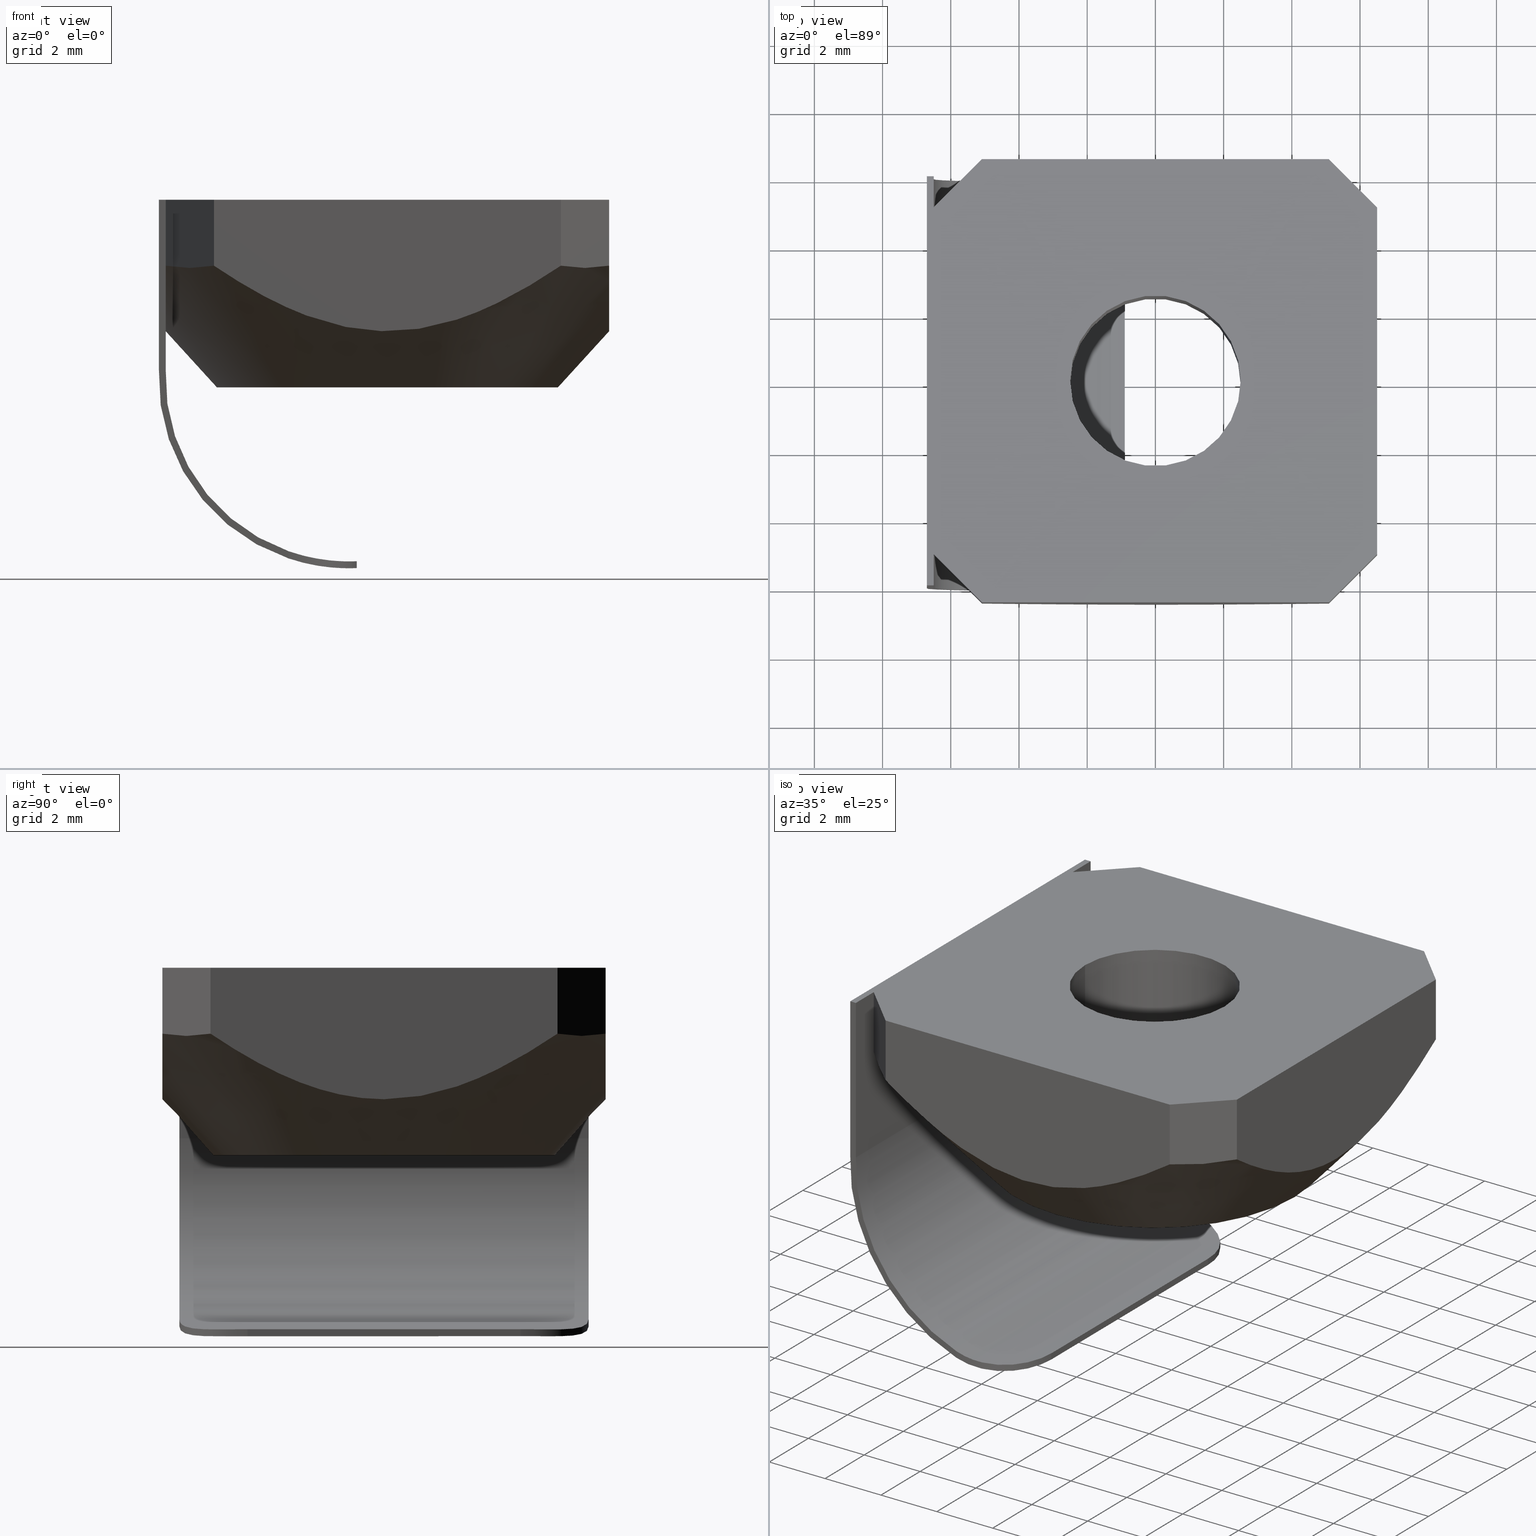
[diagram: canonical four-view strip — front | top / right | iso, engineering-drawing reading convention]
A machine part, canonical four-view strip (front | top / right | iso — engineering-drawing reading convention). The complete STEP part file that produces these views, byte-faithful:
ISO-10303-21;
HEADER;
FILE_DESCRIPTION (( 'STEP AP203' ),
    '1' );
FILE_NAME ('dado-M5-molla-3D.STEP',
    '2018-11-12T12:21:40',
    ( '' ),
    ( '' ),
    'SwSTEP 2.0',
    'SolidWorks 2018',
    '' );
FILE_SCHEMA (( 'CONFIG_CONTROL_DESIGN' ));
ENDSEC;

DATA;
#1 = APPROVAL_PERSON_ORGANIZATION ( #724, #678, #375 ) ;
#2 = FACE_OUTER_BOUND ( 'NONE', #275, .T. ) ;
#3 = LINE ( 'NONE', #715, #709 ) ;
#4 = EDGE_CURVE ( 'NONE', #115, #319, #650, .T. ) ;
#5 = EDGE_CURVE ( 'NONE', #288, #885, #623, .T. ) ;
#6 = ORIENTED_EDGE ( 'NONE', *, *, #520, .T. ) ;
#7 = VERTEX_POINT ( 'NONE', #171 ) ;
#8 = CARTESIAN_POINT ( 'NONE',  ( 5.085786437677108474, 6.500000000012474466, -1.933334202242375177 ) ) ;
#9 = DIRECTION ( 'NONE',  ( -0.0000000000000000000, -0.0000000000000000000, 1.000000000000000000 ) ) ;
#10 = ADVANCED_FACE ( 'NONE', ( #169 ), #177, .F. ) ;
#11 = CARTESIAN_POINT ( 'NONE',  ( -2.394469476613536596, -5.939327885384850347, -10.66116901662332594 ) ) ;
#12 = DIRECTION ( 'NONE',  ( -1.112060755793410790E-16, 1.112060755793410790E-16, 1.000000000000000000 ) ) ;
#13 = EDGE_CURVE ( 'NONE', #314, #319, #247, .T. ) ;
#14 = CARTESIAN_POINT ( 'NONE',  ( 5.085786437626906853, 6.500000000000003553, 0.0000000000000000000 ) ) ;
#15 =( NAMED_UNIT ( * ) SI_UNIT ( $, .STERADIAN. ) SOLID_ANGLE_UNIT ( ) );
#16 = DIRECTION ( 'NONE',  ( 1.000000000000000000, 0.0000000000000000000, 1.734723474884541410E-16 ) ) ;
#17 = VECTOR ( 'NONE', #9, 1000.000000000000000 ) ;
#18 = VECTOR ( 'NONE', #618, 1000.000000000000000 ) ;
#19 = CC_DESIGN_DATE_AND_TIME_ASSIGNMENT ( #298, #849, ( #714 ) ) ;
#20 = DIRECTION ( 'NONE',  ( 0.0000000000000000000, -0.0000000000000000000, -1.000000000000000000 ) ) ;
#21 = ORIENTED_EDGE ( 'NONE', *, *, #537, .T. ) ;
#22 = ORIENTED_EDGE ( 'NONE', *, *, #333, .F. ) ;
#23 = CARTESIAN_POINT ( 'NONE',  ( -2.647124743138815184, -5.988116661962671117, -10.59610124318355595 ) ) ;
#24 = DIRECTION ( 'NONE',  ( 0.7071067811865473507, -0.7071067811865477948, 0.0000000000000000000 ) ) ;
#25 = DIRECTION ( 'NONE',  ( 0.0000000000000000000, 0.0000000000000000000, -1.000000000000000000 ) ) ;
#26 = AXIS2_PLACEMENT_3D ( 'NONE', #641, #449, #315 ) ;
#27 = APPROVAL_PERSON_ORGANIZATION ( #482, #398, #313 ) ;
#28 = PLANE ( 'NONE',  #579 ) ;
#29 = VECTOR ( 'NONE', #354, 1000.000000000000000 ) ;
#30 = FACE_OUTER_BOUND ( 'NONE', #710, .T. ) ;
#31 = ADVANCED_FACE ( 'NONE', ( #875 ), #383, .T. ) ;
#32 = ORIENTED_EDGE ( 'NONE', *, *, #450, .T. ) ;
#33 = AXIS2_PLACEMENT_3D ( 'NONE', #190, #812, #873 ) ;
#34 = CARTESIAN_POINT ( 'NONE',  ( -6.500000000000001776, 6.000000000000000888, 0.0000000000000000000 ) ) ;
#35 = CARTESIAN_POINT ( 'NONE',  ( -6.500000000000000888, 3.064398180133085755E-15, -3.855463141347039269 ) ) ;
#36 = FACE_OUTER_BOUND ( 'NONE', #587, .T. ) ;
#37 = VERTEX_POINT ( 'NONE', #708 ) ;
#38 = ORIENTED_EDGE ( 'NONE', *, *, #162, .T. ) ;
#39 = DIRECTION ( 'NONE',  ( -0.0000000000000000000, -0.0000000000000000000, 1.000000000000000000 ) ) ;
#40 = EDGE_LOOP ( 'NONE', ( #534, #598, #685, #740 ) ) ;
#41 = EDGE_CURVE ( 'NONE', #787, #796, #523, .T. ) ;
#42 = CARTESIAN_POINT ( 'NONE',  ( -6.499999993186322378, -5.085786460416152899, -1.933334192774046389 ) ) ;
#43 = CARTESIAN_POINT ( 'NONE',  ( -1.683971125497193855, -5.609481214074992117, -10.57968423231352872 ) ) ;
#44 = AXIS2_PLACEMENT_3D ( 'NONE', #231, #174, #510 ) ;
#45 = COORDINATED_UNIVERSAL_TIME_OFFSET ( 1, 0, .AHEAD. ) ;
#46 = CARTESIAN_POINT ( 'NONE',  ( -1.402925667026931444, -5.332688051299565579, -10.59886806062529452 ) ) ;
#47 = LINE ( 'NONE', #356, #566 ) ;
#48 = ORIENTED_EDGE ( 'NONE', *, *, #5, .T. ) ;
#49 = ORIENTED_EDGE ( 'NONE', *, *, #368, .T. ) ;
#50 = CARTESIAN_POINT ( 'NONE',  ( 6.500000000000000888, 0.4651318099034550402, -3.855463141347036604 ) ) ;
#51 = ORIENTED_EDGE ( 'NONE', *, *, #479, .F. ) ;
#52 = B_SPLINE_CURVE_WITH_KNOTS ( 'NONE', 3,
 ( #297, #240, #847, #573, #99, #168, #228, #701, #843, #376, #563, #161, #776, #160, #505, #631, #233, #695 ),
 .UNSPECIFIED., .F., .F.,
 ( 4, 2, 2, 2, 2, 2, 2, 2, 4 ),
 ( 8.321467144627602380E-14, 0.001375126083683638313, 0.002750252167284061942, 0.004125378250884485787, 0.005500504334484909198, 0.006875630418085332610, 0.008250756501685756888, 0.009625882585286179433, 0.01100100866888660371 ),
 .UNSPECIFIED. ) ;
#53 = EDGE_CURVE ( 'NONE', #428, #301, #193, .T. ) ;
#54 = PLANE ( 'NONE',  #716 ) ;
#55 = CARTESIAN_POINT ( 'NONE',  ( -2.899999999999090861, -6.000000000000000888, -10.30533168883703432 ) ) ;
#56 = CARTESIAN_POINT ( 'NONE',  ( -6.500000000000001776, 3.107041528813947462, -3.094886144136435480 ) ) ;
#57 = CARTESIAN_POINT ( 'NONE',  ( -1.815581894366166571, -6.500000000000001776, -3.598278178908113745 ) ) ;
#58 = CARTESIAN_POINT ( 'NONE',  ( -6.700000000000000178, 0.0000000000000000000, 0.0000000000000000000 ) ) ;
#59 = FACE_OUTER_BOUND ( 'NONE', #40, .T. ) ;
#60 = CARTESIAN_POINT ( 'NONE',  ( -1.310095481112453886, 5.241528610286935397, -10.60524065647586056 ) ) ;
#61 = ORIENTED_EDGE ( 'NONE', *, *, #305, .F. ) ;
#62 = ORIENTED_EDGE ( 'NONE', *, *, #751, .T. ) ;
#63 = CARTESIAN_POINT ( 'NONE',  ( -6.500000000000000000, 5.085786390128566481, -1.933334234376848704 ) ) ;
#64 = CC_DESIGN_PERSON_AND_ORGANIZATION_ASSIGNMENT ( #388, #860, ( #235 ) ) ;
#65 = CARTESIAN_POINT ( 'NONE',  ( -6.500000000000000888, 3.516244414295480958, -2.888242049458875194 ) ) ;
#66 = CARTESIAN_POINT ( 'NONE',  ( -0.4648848418447529274, -6.500000000000003553, -3.855480798021071465 ) ) ;
#67 = DIRECTION ( 'NONE',  ( -0.0000000000000000000, 1.000000000000000000, 0.0000000000000000000 ) ) ;
#68 = CARTESIAN_POINT ( 'NONE',  ( -4.703608218064449176, -6.499999999966565412, -2.191533057788421779 ) ) ;
#69 = EDGE_CURVE ( 'NONE', #674, #798, #446, .T. ) ;
#70 = VECTOR ( 'NONE', #602, 1000.000000000000000 ) ;
#71 = ORIENTED_EDGE ( 'NONE', *, *, #179, .F. ) ;
#72 = CARTESIAN_POINT ( 'NONE',  ( 5.085786437626906853, 6.500000000000003553, 0.0000000000000000000 ) ) ;
#73 = ORIENTED_EDGE ( 'NONE', *, *, #774, .F. ) ;
#74 = VERTEX_POINT ( 'NONE', #396 ) ;
#75 = PLANE ( 'NONE',  #324 ) ;
#76 = CARTESIAN_POINT ( 'NONE',  ( 6.028595479215633546, 5.557190958371792888, -2.021894486489666409 ) ) ;
#77 = AXIS2_PLACEMENT_3D ( 'NONE', #481, #616, #544 ) ;
#78 = CARTESIAN_POINT ( 'NONE',  ( -6.500000000000000888, 6.000000000000000888, -4.999999999999999112 ) ) ;
#79 = CARTESIAN_POINT ( 'NONE',  ( 6.500000000000000888, -4.314590728831698918, -2.436610215365368148 ) ) ;
#80 = CARTESIAN_POINT ( 'NONE',  ( -1.004837508867433948, 4.652435106583540758, -10.80358583923901428 ) ) ;
#81 = CARTESIAN_POINT ( 'NONE',  ( 6.028595479244057032, -5.557190958382852486, -2.021894486498649446 ) ) ;
#82 = CARTESIAN_POINT ( 'NONE',  ( 6.500000000012471801, 5.085786437614437716, -1.933334202284715309 ) ) ;
#83 = VECTOR ( 'NONE', #432, 1000.000000000000000 ) ;
#84 = ORIENTED_EDGE ( 'NONE', *, *, #89, .F. ) ;
#85 = CLOSED_SHELL ( 'NONE', ( #306, #550, #853, #10, #620, #703, #101, #443, #561, #31, #745, #294, #838, #814, #108, #635, #572, #164, #495, #468, #374, #355 ) ) ;
#86 = PLANE ( 'NONE',  #370 ) ;
#87 = CARTESIAN_POINT ( 'NONE',  ( -0.8999999999990927479, 0.0000000000000000000, -10.80000000000000426 ) ) ;
#88 = CARTESIAN_POINT ( 'NONE',  ( -6.500000000000000888, -5.085786437626906853, 0.0000000000000000000 ) ) ;
#89 = EDGE_CURVE ( 'NONE', #447, #7, #645, .T. ) ;
#90 = PERSON_AND_ORGANIZATION_ROLE ( 'design_owner' ) ;
#91 = CARTESIAN_POINT ( 'NONE',  ( 8.326673000000000714E-16, 6.500000000000003553, 0.0000000000000000000 ) ) ;
#92 = DATE_AND_TIME ( #208, #316 ) ;
#93 = CYLINDRICAL_SURFACE ( 'NONE', #44, 5.374336801206437642 ) ;
#94 = DIRECTION ( 'NONE',  ( 0.0000000000000000000, 0.0000000000000000000, 1.000000000000000000 ) ) ;
#95 = ORIENTED_EDGE ( 'NONE', *, *, #599, .T. ) ;
#96 = VERTEX_POINT ( 'NONE', #521 ) ;
#97 = EDGE_LOOP ( 'NONE', ( #364, #877, #32, #230 ) ) ;
#98 = CARTESIAN_POINT ( 'NONE',  ( -5.085786437677105809, -6.500000000012473578, -1.933334202242374511 ) ) ;
#99 = CARTESIAN_POINT ( 'NONE',  ( 3.107021229645465343, 6.500000000000003553, -3.094896613372098315 ) ) ;
#100 = EDGE_CURVE ( 'NONE', #319, #609, #591, .T. ) ;
#101 = ADVANCED_FACE ( 'NONE', ( #59 ), #187, .T. ) ;
#102 = COORDINATED_UNIVERSAL_TIME_OFFSET ( 1, 0, .AHEAD. ) ;
#103 = VECTOR ( 'NONE', #395, 1000.000000000000114 ) ;
#104 = VECTOR ( 'NONE', #526, 1000.000000000000000 ) ;
#105 = EDGE_LOOP ( 'NONE', ( #406, #199, #488, #687 ) ) ;
#106 = AXIS2_PLACEMENT_3D ( 'NONE', #788, #175, #649 ) ;
#107 = EDGE_LOOP ( 'NONE', ( #391, #62, #302, #157, #453, #211 ) ) ;
#108 = ADVANCED_FACE ( 'NONE', ( #684 ), #791, .T. ) ;
#109 = CC_DESIGN_PERSON_AND_ORGANIZATION_ASSIGNMENT ( #185, #380, ( #235 ) ) ;
#110 = VECTOR ( 'NONE', #782, 1000.000000000000000 ) ;
#111 = ORIENTED_EDGE ( 'NONE', *, *, #292, .T. ) ;
#112 = CARTESIAN_POINT ( 'NONE',  ( -1.316938477185366718, -5.229369240623812587, -10.60222832659102288 ) ) ;
#113 = EDGE_LOOP ( 'NONE', ( #123, #213, #378, #452 ) ) ;
#114 = EDGE_CURVE ( 'NONE', #720, #74, #384, .T. ) ;
#115 = VERTEX_POINT ( 'NONE', #191 ) ;
#116 = CARTESIAN_POINT ( 'NONE',  ( 6.500000000000001776, 3.516244482516675429, -2.888242014042283312 ) ) ;
#117 = CARTESIAN_POINT ( 'NONE',  ( -8.673617379884035472E-16, 1.734723475976807094E-15, -1.911934207335162839 ) ) ;
#118 = CARTESIAN_POINT ( 'NONE',  ( 6.500000000000002665, 3.107041589949054661, -3.094886115538637128 ) ) ;
#119 = AXIS2_PLACEMENT_3D ( 'NONE', #361, #491, #290 ) ;
#120 = CARTESIAN_POINT ( 'NONE',  ( 8.272713925181706784, 1.734723475976807094E-15, -1.911934207335161950 ) ) ;
#121 = LINE ( 'NONE', #711, #762 ) ;
#122 = FACE_OUTER_BOUND ( 'NONE', #107, .T. ) ;
#123 = ORIENTED_EDGE ( 'NONE', *, *, #743, .F. ) ;
#124 = CARTESIAN_POINT ( 'NONE',  ( -0.9205997802961275456, -6.500000000000003553, -3.800373221879205232 ) ) ;
#125 = VERTEX_POINT ( 'NONE', #719 ) ;
#126 = PRODUCT ( 'dado-M5-molla-3D', 'dado-M5-molla-3D', '', ( #842 ) ) ;
#127 = CARTESIAN_POINT ( 'NONE',  ( -6.500000000000000888, 0.0000000000000000000, 0.0000000000000000000 ) ) ;
#128 = CARTESIAN_POINT ( 'NONE',  ( -6.500000000000000888, 3.064398180133085755E-15, -3.855463141347039269 ) ) ;
#129 = CARTESIAN_POINT ( 'NONE',  ( -4.683470219463361509E-16, 1.335708759934739698E-15, -5.500000002871543892 ) ) ;
#130 = CARTESIAN_POINT ( 'NONE',  ( -1.130613297613433987, 6.000000000000000888, -5.230613297613471602 ) ) ;
#131 = EDGE_CURVE ( 'NONE', #755, #517, #403, .T. ) ;
#132 = CARTESIAN_POINT ( 'NONE',  ( -6.700000000000000178, 0.0000000000000000000, -5.000000000000000000 ) ) ;
#133 = CALENDAR_DATE ( 2018, 12, 11 ) ;
#134 = FACE_OUTER_BOUND ( 'NONE', #750, .T. ) ;
#135 = ORIENTED_EDGE ( 'NONE', *, *, #246, .T. ) ;
#136 = ORIENTED_EDGE ( 'NONE', *, *, #565, .F. ) ;
#137 = EDGE_LOOP ( 'NONE', ( #438, #844, #172, #73 ) ) ;
#138 = DIRECTION ( 'NONE',  ( 0.0000000000000000000, -0.0000000000000000000, 1.000000000000000000 ) ) ;
#139 = CARTESIAN_POINT ( 'NONE',  ( 5.085786437626906853, 6.500000000000003553, 0.0000000000000000000 ) ) ;
#140 = DIRECTION ( 'NONE',  ( -1.000000000000000000, 0.0000000000000000000, 0.0000000000000000000 ) ) ;
#141 = EDGE_CURVE ( 'NONE', #125, #558, #397, .T. ) ;
#142 = CARTESIAN_POINT ( 'NONE',  ( -5.085786437626904188, 6.500000000000005329, 0.0000000000000000000 ) ) ;
#143 = LINE ( 'NONE', #760, #498 ) ;
#144 = CARTESIAN_POINT ( 'NONE',  ( -1.316325931495049950, -5.228568794416730725, -10.80216733933092854 ) ) ;
#145 = CARTESIAN_POINT ( 'NONE',  ( -6.500000000000000000, 0.4651317998288859723, -3.855463141347039269 ) ) ;
#146 = ORIENTED_EDGE ( 'NONE', *, *, #409, .T. ) ;
#147 = ORIENTED_EDGE ( 'NONE', *, *, #520, .F. ) ;
#148 = CARTESIAN_POINT ( 'NONE',  ( -5.085786437677106697, 6.500000000012475354, -1.933334202242377842 ) ) ;
#149 = CARTESIAN_POINT ( 'NONE',  ( 6.500000000000000000, -2.258188589613314257, -3.449924592231258913 ) ) ;
#150 = CARTESIAN_POINT ( 'NONE',  ( -6.028595512367949993, 5.557190925258959524, -2.021894485311552803 ) ) ;
#151 = CARTESIAN_POINT ( 'NONE',  ( 6.500000000000002665, 5.085786437626907741, 0.0000000000000000000 ) ) ;
#152 = CC_DESIGN_PERSON_AND_ORGANIZATION_ASSIGNMENT ( #497, #643, ( #456 ) ) ;
#153 = LOCAL_TIME ( 13, 21, 40.00000000000000000, #704 ) ;
#154 = PLANE ( 'NONE',  #119 ) ;
#155 = DIRECTION ( 'NONE',  ( 0.0000000000000000000, 0.0000000000000000000, -1.000000000000000000 ) ) ;
#156 = CYLINDRICAL_SURFACE ( 'NONE', #604, 2.000000000000000444 ) ;
#157 = ORIENTED_EDGE ( 'NONE', *, *, #194, .F. ) ;
#158 = ORIENTED_EDGE ( 'NONE', *, *, #859, .F. ) ;
#159 = DATE_TIME_ROLE ( 'classification_date' ) ;
#160 = CARTESIAN_POINT ( 'NONE',  ( -3.107124692420668133, 6.500000000000003553, -3.094845548749639796 ) ) ;
#161 = CARTESIAN_POINT ( 'NONE',  ( -1.815743295979880489, 6.500000000000003553, -3.598228176136374135 ) ) ;
#162 = EDGE_CURVE ( 'NONE', #787, #115, #328, .T. ) ;
#163 = DESIGN_CONTEXT ( 'detailed design', #614, 'design' ) ;
#164 = ADVANCED_FACE ( 'NONE', ( #122 ), #405, .T. ) ;
#165 = DIRECTION ( 'NONE',  ( 0.7071067811865474617, -0.7071067811865474617, 0.0000000000000000000 ) ) ;
#166 = VECTOR ( 'NONE', #738, 1000.000000000000000 ) ;
#167 = AXIS2_PLACEMENT_3D ( 'NONE', #139, #280, #349 ) ;
#168 = CARTESIAN_POINT ( 'NONE',  ( 2.258066242822476255, 6.500000000000003553, -3.449969955218920692 ) ) ;
#169 = FACE_OUTER_BOUND ( 'NONE', #105, .T. ) ;
#170 = ORIENTED_EDGE ( 'NONE', *, *, #821, .T. ) ;
#171 = CARTESIAN_POINT ( 'NONE',  ( 6.500000000012471801, -5.085786437677110250, -1.933334202242371402 ) ) ;
#172 = ORIENTED_EDGE ( 'NONE', *, *, #333, .T. ) ;
#173 = APPROVAL_ROLE ( '' ) ;
#174 = DIRECTION ( 'NONE',  ( 0.0000000000000000000, 1.000000000000000000, 0.0000000000000000000 ) ) ;
#175 = DIRECTION ( 'NONE',  ( 0.0000000000000000000, 0.0000000000000000000, -1.000000000000000000 ) ) ;
#176 = CALENDAR_DATE ( 2018, 12, 11 ) ;
#177 = CYLINDRICAL_SURFACE ( 'NONE', #106, 2.500000000000000000 ) ;
#178 = ORIENTED_EDGE ( 'NONE', *, *, #53, .F. ) ;
#179 = EDGE_CURVE ( 'NONE', #288, #474, #329, .T. ) ;
#180 = ORIENTED_EDGE ( 'NONE', *, *, #131, .T. ) ;
#181 = CARTESIAN_POINT ( 'NONE',  ( -6.499999999966563635, -4.703623663799145760, -2.191522623682523818 ) ) ;
#182 = CARTESIAN_POINT ( 'NONE',  ( -2.774072311226993381, 5.999999999999999112, -10.34923851494995795 ) ) ;
#183 = CC_DESIGN_PERSON_AND_ORGANIZATION_ASSIGNMENT ( #564, #90, ( #126 ) ) ;
#184 = CARTESIAN_POINT ( 'NONE',  ( -2.270405351109912040, -5.902728491590884197, -10.48411861581596938 ) ) ;
#185 = PERSON_AND_ORGANIZATION ( #871, #236 ) ;
#186 = CARTESIAN_POINT ( 'NONE',  ( -5.000000003148242556, 2.347935450422245371E-15, -5.500000002871544780 ) ) ;
#187 = PLANE ( 'NONE',  #250 ) ;
#188 = ORIENTED_EDGE ( 'NONE', *, *, #569, .T. ) ;
#189 = ORIENTED_EDGE ( 'NONE', *, *, #702, .T. ) ;
#190 = CARTESIAN_POINT ( 'NONE',  ( -1.130613297613433987, 0.0000000000000000000, -5.230613297613471602 ) ) ;
#191 = CARTESIAN_POINT ( 'NONE',  ( -0.8999999999990927479, 4.000000000000000888, -10.60000000000000142 ) ) ;
#192 = CARTESIAN_POINT ( 'NONE',  ( -6.500000000000000000, 1.815600802417214776, -3.598271844878063952 ) ) ;
#193 = B_SPLINE_CURVE_WITH_KNOTS ( 'NONE', 3,
 ( #723, #50, #457, #802, #387, #118, #116, #454, #655, #586 ),
 .UNSPECIFIED., .F., .F.,
 ( 4, 2, 2, 2, 4 ),
 ( 0.005500282472162170040, 0.006875464021324488584, 0.008250645570486806260, 0.009625827119649123936, 0.01100100866881144161 ),
 .UNSPECIFIED. ) ;
#194 = EDGE_CURVE ( 'NONE', #885, #796, #197, .T. ) ;
#195 = CARTESIAN_POINT ( 'NONE',  ( -4.314559355035862076, -6.500000000000002665, -2.436630007698925571 ) ) ;
#196 = LINE ( 'NONE', #529, #739 ) ;
#197 = CIRCLE ( 'NONE', #846, 5.574159195229042574 ) ;
#198 = DIRECTION ( 'NONE',  ( 1.000000000000000000, 0.0000000000000000000, 1.734723474884541410E-16 ) ) ;
#199 = ORIENTED_EDGE ( 'NONE', *, *, #114, .F. ) ;
#200 = DIRECTION ( 'NONE',  ( -0.0000000000000000000, -1.000000000000000000, -0.0000000000000000000 ) ) ;
#201 = ORIENTED_EDGE ( 'NONE', *, *, #13, .T. ) ;
#202 = AXIS2_PLACEMENT_3D ( 'NONE', #427, #12, #16 ) ;
#203 = PLANE ( 'NONE',  #486 ) ;
#204 = CARTESIAN_POINT ( 'NONE',  ( -1.915782846449659571, 5.746021781213180191, -10.54844210040768182 ) ) ;
#205 = CARTESIAN_POINT ( 'NONE',  ( -6.500000000000000000, -0.9207822221066512824, -3.800343511899493265 ) ) ;
#206 = EDGE_CURVE ( 'NONE', #125, #416, #726, .T. ) ;
#207 = CARTESIAN_POINT ( 'NONE',  ( 5.085786437677106697, -6.500000000012474466, -1.933334202242371402 ) ) ;
#208 = CALENDAR_DATE ( 2018, 12, 11 ) ;
#209 = VECTOR ( 'NONE', #343, 1000.000000000000114 ) ;
#210 = CARTESIAN_POINT ( 'NONE',  ( -0.8999999999990923039, -4.000000000000000888, -10.80000000000000426 ) ) ;
#211 = ORIENTED_EDGE ( 'NONE', *, *, #179, .T. ) ;
#212 = ORIENTED_EDGE ( 'NONE', *, *, #317, .F. ) ;
#213 = ORIENTED_EDGE ( 'NONE', *, *, #69, .T. ) ;
#214 = CARTESIAN_POINT ( 'NONE',  ( -1.402195199358209576, -5.331859095341035193, -10.79894222888097488 ) ) ;
#215 = CARTESIAN_POINT ( 'NONE',  ( -1.590460600683623271, 5.517359991092524396, -10.78656512110864618 ) ) ;
#216 = AXIS2_PLACEMENT_3D ( 'NONE', #473, #825, #756 ) ;
#217 = DIRECTION ( 'NONE',  ( 0.0000000000000000000, 1.000000000000000000, 0.0000000000000000000 ) ) ;
#218 = CARTESIAN_POINT ( 'NONE',  ( -1.682905259834076572, -5.608649084208455982, -10.78051389598287813 ) ) ;
#219 = CARTESIAN_POINT ( 'NONE',  ( 5.085786437677106697, -6.500000000012474466, -1.933334202242371402 ) ) ;
#220 = CARTESIAN_POINT ( 'NONE',  ( -2.899999999999091749, -6.000000000000000888, -8.605752313873143322 ) ) ;
#221 = CARTESIAN_POINT ( 'NONE',  ( 6.500000000000000888, 2.268358371881253341E-15, -3.855463141347035716 ) ) ;
#222 = DIRECTION ( 'NONE',  ( 0.0000000000000000000, 0.0000000000000000000, 1.000000000000000000 ) ) ;
#223 = MANIFOLD_SOLID_BREP ( 'Importato1', #85 ) ;
#224 = FACE_OUTER_BOUND ( 'NONE', #857, .T. ) ;
#225 = CARTESIAN_POINT ( 'NONE',  ( -2.899999999999091305, 6.000000000000000888, -10.51649273543432273 ) ) ;
#226 = VECTOR ( 'NONE', #320, 1000.000000000000000 ) ;
#227 = CARTESIAN_POINT ( 'NONE',  ( -2.899999999999090861, -6.000000000000000888, -10.51649273543432273 ) ) ;
#228 = CARTESIAN_POINT ( 'NONE',  ( 1.815581894366168791, 6.500000000000003553, -3.598278178908117297 ) ) ;
#229 = EDGE_LOOP ( 'NONE', ( #464, #393, #135, #146, #878, #845, #71, #744, #820, #386, #417, #189 ) ) ;
#230 = ORIENTED_EDGE ( 'NONE', *, *, #69, .F. ) ;
#231 = CARTESIAN_POINT ( 'NONE',  ( -1.130613297613433987, 0.0000000000000000000, -5.230613297613471602 ) ) ;
#232 = EDGE_CURVE ( 'NONE', #416, #267, #527, .T. ) ;
#233 = CARTESIAN_POINT ( 'NONE',  ( -4.703623369059489079, 6.500000000000002665, -2.191522821825996559 ) ) ;
#234 = ADVANCED_BREP_SHAPE_REPRESENTATION ( 'dado-M5-molla-3D', ( #223, #667 ), #663 ) ;
#235 = PRODUCT_DEFINITION_FORMATION_WITH_SPECIFIED_SOURCE ( 'TUTTO', '', #126, .NOT_KNOWN. ) ;
#236 = ORGANIZATION ( 'NON SPECIFICATO', 'NON SPECIFICATO', '' ) ;
#237 = DIRECTION ( 'NONE',  ( 1.000000000000000000, 0.0000000000000000000, -0.0000000000000000000 ) ) ;
#238 = EDGE_LOOP ( 'NONE', ( #439, #627, #38, #799 ) ) ;
#239 = ORIENTED_EDGE ( 'NONE', *, *, #13, .F. ) ;
#240 = CARTESIAN_POINT ( 'NONE',  ( 4.703608218064447399, 6.499999999966565412, -2.191533057788421335 ) ) ;
#241 = VERTEX_POINT ( 'NONE', #360 ) ;
#242 = SECURITY_CLASSIFICATION_LEVEL ( 'unclassified' ) ;
#243 = DIRECTION ( 'NONE',  ( 0.0000000000000000000, 0.0000000000000000000, -1.000000000000000000 ) ) ;
#244 = PRODUCT_RELATED_PRODUCT_CATEGORY ( 'detail', '', ( #126 ) ) ;
#245 = LINE ( 'NONE', #14, #594 ) ;
#246 = EDGE_CURVE ( 'NONE', #241, #353, #350, .T. ) ;
#247 = LINE ( 'NONE', #862, #578 ) ;
#248 = VERTEX_POINT ( 'NONE', #268 ) ;
#249 = ORIENTED_EDGE ( 'NONE', *, *, #479, .T. ) ;
#250 = AXIS2_PLACEMENT_3D ( 'NONE', #657, #732, #876 ) ;
#251 = CARTESIAN_POINT ( 'NONE',  ( 0.0000000000000000000, 0.0000000000000000000, 0.0000000000000000000 ) ) ;
#252 = APPROVAL_DATE_TIME ( #884, #588 ) ;
#253 = CARTESIAN_POINT ( 'NONE',  ( -1.910282521876402795, -5.757133988056938989, -10.55371426948262226 ) ) ;
#254 = LINE ( 'NONE', #480, #775 ) ;
#255 = ORIENTED_EDGE ( 'NONE', *, *, #555, .F. ) ;
#256 = EDGE_CURVE ( 'NONE', #796, #634, #458, .T. ) ;
#257 = ORIENTED_EDGE ( 'NONE', *, *, #706, .F. ) ;
#258 = CARTESIAN_POINT ( 'NONE',  ( -2.647896067399243769, -5.988198786915118532, -10.38797620515204656 ) ) ;
#259 = ORIENTED_EDGE ( 'NONE', *, *, #582, .F. ) ;
#260 = CARTESIAN_POINT ( 'NONE',  ( -5.085786437626904188, 6.500000000000005329, 0.0000000000000000000 ) ) ;
#261 = AXIS2_PLACEMENT_3D ( 'NONE', #748, #893, #419 ) ;
#262 = PLANE ( 'NONE',  #77 ) ;
#263 = LINE ( 'NONE', #734, #707 ) ;
#264 = VECTOR ( 'NONE', #577, 1000.000000000000000 ) ;
#265 = CARTESIAN_POINT ( 'NONE',  ( 0.4653350873336495885, -6.500000000000003553, -3.855445476124735649 ) ) ;
#266 = B_SPLINE_CURVE_WITH_KNOTS ( 'NONE', 3,
 ( #82, #76, #420, #8 ),
 .UNSPECIFIED., .F., .F.,
 ( 4, 4 ),
 ( 1.619525838437646925E-14, 0.002000000000007150572 ),
 .UNSPECIFIED. ) ;
#267 = VERTEX_POINT ( 'NONE', #423 ) ;
#268 = CARTESIAN_POINT ( 'NONE',  ( -6.500000000000001776, -6.000000000000000888, 0.0000000000000000000 ) ) ;
#269 = DIRECTION ( 'NONE',  ( 0.0000000000000000000, 0.0000000000000000000, 1.000000000000000000 ) ) ;
#270 = EDGE_CURVE ( 'NONE', #474, #430, #143, .T. ) ;
#271 = DIRECTION ( 'NONE',  ( 0.7071067811865475727, -0.7071067811865475727, 0.0000000000000000000 ) ) ;
#272 = CARTESIAN_POINT ( 'NONE',  ( -2.500000000000000000, 0.0000000000000000000, 0.0000000000000000000 ) ) ;
#273 = ORIENTED_EDGE ( 'NONE', *, *, #292, .F. ) ;
#274 = DIRECTION ( 'NONE',  ( -0.7071067811865474617, 0.7071067811865474617, 0.0000000000000000000 ) ) ;
#275 = EDGE_LOOP ( 'NONE', ( #809, #61 ) ) ;
#276 = AXIS2_PLACEMENT_3D ( 'NONE', #628, #693, #622 ) ;
#277 = ORIENTED_EDGE ( 'NONE', *, *, #675, .F. ) ;
#278 = CARTESIAN_POINT ( 'NONE',  ( 5.557190958361344357, -6.028595479226081189, -2.021894486487701315 ) ) ;
#279 = CARTESIAN_POINT ( 'NONE',  ( -2.029980994070234246, 5.805549654954907268, -10.73310885750738031 ) ) ;
#280 = DIRECTION ( 'NONE',  ( 0.0000000000000000000, 1.000000000000000000, 0.0000000000000000000 ) ) ;
#281 = CARTESIAN_POINT ( 'NONE',  ( -2.269134632788989414, -5.902311069965044510, -10.68862859002647703 ) ) ;
#282 = CARTESIAN_POINT ( 'NONE',  ( -0.8999999999990929700, 4.000000000000000888, -10.80000000000000426 ) ) ;
#283 = DIRECTION ( 'NONE',  ( -0.0000000000000000000, -0.0000000000000000000, 1.000000000000000000 ) ) ;
#284 = LINE ( 'NONE', #120, #103 ) ;
#285 = CARTESIAN_POINT ( 'NONE',  ( 6.500000000000002665, -0.4650942893279644830, -3.855463141347037048 ) ) ;
#286 = CARTESIAN_POINT ( 'NONE',  ( -0.8999999999990923039, 4.133304153726891528, -10.80000000000000604 ) ) ;
#287 = FACE_OUTER_BOUND ( 'NONE', #137, .T. ) ;
#288 = VERTEX_POINT ( 'NONE', #551 ) ;
#289 = DIRECTION ( 'NONE',  ( -0.0000000000000000000, 0.0000000000000000000, -1.000000000000000000 ) ) ;
#290 = DIRECTION ( 'NONE',  ( 1.000000000000000000, 0.0000000000000000000, -0.0000000000000000000 ) ) ;
#291 = CARTESIAN_POINT ( 'NONE',  ( -1.914531410710623494, 5.745311101487738270, -10.75048506881352139 ) ) ;
#292 = EDGE_CURVE ( 'NONE', #634, #314, #865, .T. ) ;
#293 = CARTESIAN_POINT ( 'NONE',  ( -5.085786437677106697, 6.500000000012475354, -1.933334202242377842 ) ) ;
#294 = ADVANCED_FACE ( 'NONE', ( #287 ), #352, .T. ) ;
#295 = CARTESIAN_POINT ( 'NONE',  ( 6.499999999999999112, -3.516297865762419761, -2.888213576328807708 ) ) ;
#296 = DIRECTION ( 'NONE',  ( 1.000000000000000000, 0.0000000000000000000, 0.0000000000000000000 ) ) ;
#297 = CARTESIAN_POINT ( 'NONE',  ( 5.085786437677108474, 6.500000000012474466, -1.933334202242375177 ) ) ;
#298 = DATE_AND_TIME ( #605, #864 ) ;
#299 = LINE ( 'NONE', #413, #697 ) ;
#300 = CARTESIAN_POINT ( 'NONE',  ( -5.221683483938816650, -6.000000000000000888, 0.0000000000000000000 ) ) ;
#301 = VERTEX_POINT ( 'NONE', #625 ) ;
#302 = ORIENTED_EDGE ( 'NONE', *, *, #41, .T. ) ;
#303 = ORIENTED_EDGE ( 'NONE', *, *, #821, .F. ) ;
#304 = APPROVAL_STATUS ( 'not_yet_approved' ) ;
#305 = EDGE_CURVE ( 'NONE', #571, #653, #472, .T. ) ;
#306 = ADVANCED_FACE ( 'NONE', ( #717 ), #832, .F. ) ;
#307 = DATE_AND_TIME ( #749, #669 ) ;
#308 = DIRECTION ( 'NONE',  ( 0.0000000000000000000, 0.0000000000000000000, -1.000000000000000000 ) ) ;
#309 = FACE_OUTER_BOUND ( 'NONE', #229, .T. ) ;
#310 = CARTESIAN_POINT ( 'NONE',  ( -6.700000000000000178, 6.000000000000000888, 0.0000000000000000000 ) ) ;
#311 = FACE_OUTER_BOUND ( 'NONE', #700, .T. ) ;
#312 = ORIENTED_EDGE ( 'NONE', *, *, #270, .T. ) ;
#313 = APPROVAL_ROLE ( '' ) ;
#314 = VERTEX_POINT ( 'NONE', #210 ) ;
#315 = DIRECTION ( 'NONE',  ( -0.7071067811865474617, -0.7071067811865474617, 0.0000000000000000000 ) ) ;
#316 = LOCAL_TIME ( 13, 21, 40.00000000000000000, #102 ) ;
#317 = EDGE_CURVE ( 'NONE', #647, #447, #508, .T. ) ;
#318 = VECTOR ( 'NONE', #24, 1000.000000000000000 ) ;
#319 = VERTEX_POINT ( 'NONE', #677 ) ;
#320 = DIRECTION ( 'NONE',  ( -0.0000000000000000000, 0.0000000000000000000, -1.000000000000000000 ) ) ;
#321 = ORIENTED_EDGE ( 'NONE', *, *, #790, .T. ) ;
#322 = ORIENTED_EDGE ( 'NONE', *, *, #162, .F. ) ;
#323 = CARTESIAN_POINT ( 'NONE',  ( -6.500000000000000888, 0.0000000000000000000, -4.999999999999999112 ) ) ;
#324 = AXIS2_PLACEMENT_3D ( 'NONE', #889, #217, #489 ) ;
#325 = CARTESIAN_POINT ( 'NONE',  ( -2.774018952904929947, -6.000000000000001776, -10.34925711923462188 ) ) ;
#326 = DIRECTION ( 'NONE',  ( -0.0000000000000000000, -1.000000000000000000, -0.0000000000000000000 ) ) ;
#327 = DIRECTION ( 'NONE',  ( 1.000000000000000000, -0.0000000000000000000, 0.0000000000000000000 ) ) ;
#328 = B_SPLINE_CURVE_WITH_KNOTS ( 'NONE', 3,
 ( #518, #182, #400, #603, #467, #741, #204, #747, #887, #60, #813, #883, #334, #890, #816, #342 ),
 .UNSPECIFIED., .F., .F.,
 ( 4, 2, 2, 2, 2, 2, 2, 4 ),
 ( 8.673617379884035472E-19, 0.0003946835368782056859, 0.0007893670737564105044, 0.001184050610634615214, 0.001578734147512820141, 0.002368101221269228694, 0.002762784758147433187, 0.003157468295025637247 ),
 .UNSPECIFIED. ) ;
#329 = LINE ( 'NONE', #408, #765 ) ;
#330 = ORIENTED_EDGE ( 'NONE', *, *, #345, .T. ) ;
#331 = CARTESIAN_POINT ( 'NONE',  ( -5.557190953238038134, -6.028595484388869608, -2.021894485532125696 ) ) ;
#332 = CARTESIAN_POINT ( 'NONE',  ( 1.815743295979880711, -6.500000000000003553, -3.598228176136369694 ) ) ;
#333 = EDGE_CURVE ( 'NONE', #301, #636, #266, .T. ) ;
#334 = CARTESIAN_POINT ( 'NONE',  ( -0.9654938442491616257, 4.524614171086824399, -10.60247663764588388 ) ) ;
#335 = COORDINATED_UNIVERSAL_TIME_OFFSET ( 1, 0, .AHEAD. ) ;
#336 = LINE ( 'NONE', #436, #318 ) ;
#337 = CARTESIAN_POINT ( 'NONE',  ( 6.500000000000002665, 5.085786437626907741, 0.0000000000000000000 ) ) ;
#338 = AXIS2_PLACEMENT_3D ( 'NONE', #492, #222, #347 ) ;
#339 = EDGE_LOOP ( 'NONE', ( #646, #442, #535, #111, #170, #779 ) ) ;
#340 = ORIENTED_EDGE ( 'NONE', *, *, #841, .T. ) ;
#341 = CARTESIAN_POINT ( 'NONE',  ( 8.326673000000000714E-16, -6.500000000000002665, 0.0000000000000000000 ) ) ;
#342 = CARTESIAN_POINT ( 'NONE',  ( -0.8999999999990927479, 4.000000000000000888, -10.60000000000000142 ) ) ;
#343 = DIRECTION ( 'NONE',  ( -0.7071067811865474617, -0.7071067811865474617, 0.0000000000000000000 ) ) ;
#344 = CARTESIAN_POINT ( 'NONE',  ( -1.157551871694871837, 5.016427205730558114, -10.80563725334178393 ) ) ;
#345 = EDGE_CURVE ( 'NONE', #634, #115, #299, .T. ) ;
#346 = DIRECTION ( 'NONE',  ( 0.7071067811865474617, 0.7071067811865474617, 0.0000000000000000000 ) ) ;
#347 = DIRECTION ( 'NONE',  ( 1.000000000000000000, 0.0000000000000000000, 0.0000000000000000000 ) ) ;
#348 = VECTOR ( 'NONE', #326, 1000.000000000000000 ) ;
#349 = DIRECTION ( 'NONE',  ( 0.0000000000000000000, -0.0000000000000000000, 1.000000000000000000 ) ) ;
#350 = LINE ( 'NONE', #337, #461 ) ;
#351 = CARTESIAN_POINT ( 'NONE',  ( -0.9649115654999638192, -4.522226561195812344, -10.80236912847936459 ) ) ;
#352 = PLANE ( 'NONE',  #780 ) ;
#353 = VERTEX_POINT ( 'NONE', #72 ) ;
#354 = DIRECTION ( 'NONE',  ( 0.0000000000000000000, -1.000000000000000000, -0.0000000000000000000 ) ) ;
#355 = ADVANCED_FACE ( 'NONE', ( #856 ), #729, .T. ) ;
#356 = CARTESIAN_POINT ( 'NONE',  ( -6.500000000000000888, 0.0000000000000000000, -4.999999999999999112 ) ) ;
#357 = DIRECTION ( 'NONE',  ( -0.7071067811865474617, 0.7071067811865474617, 0.0000000000000000000 ) ) ;
#358 = CARTESIAN_POINT ( 'NONE',  ( -6.500000000000000000, 5.085786390128566481, -1.933334234376848704 ) ) ;
#359 = CARTESIAN_POINT ( 'NONE',  ( 6.500000000012471801, -5.085786437677110250, -1.933334202242371402 ) ) ;
#360 = CARTESIAN_POINT ( 'NONE',  ( 6.500000000000000888, 5.085786437626908629, 0.0000000000000000000 ) ) ;
#361 = CARTESIAN_POINT ( 'NONE',  ( 8.326673000000000714E-16, 6.591949000000000730E-16, 0.0000000000000000000 ) ) ;
#362 = CARTESIAN_POINT ( 'NONE',  ( -1.130613297613433987, -6.000000000000000888, -5.230613297613471602 ) ) ;
#363 = FACE_OUTER_BOUND ( 'NONE', #834, .T. ) ;
#364 = ORIENTED_EDGE ( 'NONE', *, *, #409, .F. ) ;
#365 = EDGE_LOOP ( 'NONE', ( #257, #509, #515, #639, #463 ) ) ;
#366 = APPLICATION_PROTOCOL_DEFINITION ( 'international standard', 'config_control_design', 1994, #771 ) ;
#367 = CARTESIAN_POINT ( 'NONE',  ( 5.085786437626905965, -6.500000000000003553, 0.0000000000000000000 ) ) ;
#368 = EDGE_CURVE ( 'NONE', #37, #609, #807, .T. ) ;
#369 = CARTESIAN_POINT ( 'NONE',  ( -0.8999999999990930810, 0.0000000000000000000, -10.80000000000000071 ) ) ;
#370 = AXIS2_PLACEMENT_3D ( 'NONE', #694, #691, #759 ) ;
#371 = APPLICATION_PROTOCOL_DEFINITION ( 'international standard', 'config_control_design', 1994, #614 ) ;
#372 = PERSON_AND_ORGANIZATION ( #871, #236 ) ;
#373 = CYLINDRICAL_SURFACE ( 'NONE', #33, 5.574159195229042574 ) ;
#374 = ADVANCED_FACE ( 'NONE', ( #363 ), #698, .T. ) ;
#375 = APPROVAL_ROLE ( '' ) ;
#376 = CARTESIAN_POINT ( 'NONE',  ( -0.4653350873336496996, 6.500000000000003553, -3.855445476124739201 ) ) ;
#377 = CIRCLE ( 'NONE', #793, 2.500000000000000000 ) ;
#378 = ORIENTED_EDGE ( 'NONE', *, *, #789, .T. ) ;
#379 = ORIENTED_EDGE ( 'NONE', *, *, #722, .F. ) ;
#380 = PERSON_AND_ORGANIZATION_ROLE ( 'design_supplier' ) ;
#381 = EDGE_CURVE ( 'NONE', #647, #267, #595, .T. ) ;
#382 = CONICAL_SURFACE ( 'NONE', #629, 8.272713925181706784, 0.7394660560889116940 ) ;
#383 = PLANE ( 'NONE',  #26 ) ;
#384 = CIRCLE ( 'NONE', #528, 2.500000000000000000 ) ;
#385 = VERTEX_POINT ( 'NONE', #770 ) ;
#386 = ORIENTED_EDGE ( 'NONE', *, *, #569, .F. ) ;
#387 = CARTESIAN_POINT ( 'NONE',  ( 6.500000000000000888, 2.258115985482339383, -3.449951132496112738 ) ) ;
#388 = PERSON_AND_ORGANIZATION ( #871, #236 ) ;
#389 = EDGE_CURVE ( 'NONE', #570, #248, #659, .T. ) ;
#390 = LINE ( 'NONE', #127, #348 ) ;
#391 = ORIENTED_EDGE ( 'NONE', *, *, #632, .F. ) ;
#392 = CARTESIAN_POINT ( 'NONE',  ( 6.500000000000000888, -5.085786437626907741, 0.0000000000000000000 ) ) ;
#393 = ORIENTED_EDGE ( 'NONE', *, *, #706, .T. ) ;
#394 = VERTEX_POINT ( 'NONE', #440 ) ;
#395 = DIRECTION ( 'NONE',  ( 0.6738935147379919721, 8.216221638422233690E-17, 0.7388284853699643717 ) ) ;
#396 = CARTESIAN_POINT ( 'NONE',  ( 2.500000000000000000, 3.061616997868383141E-16, 0.0000000000000000000 ) ) ;
#397 = B_SPLINE_CURVE_WITH_KNOTS ( 'NONE', 3,
 ( #42, #181, #819, #673, #668, #593, #410, #205, #735, #128 ),
 .UNSPECIFIED., .F., .F.,
 ( 4, 2, 2, 2, 4 ),
 ( 1.371897704505000388E-11, 0.001375070637910661081, 0.002750141262102344820, 0.004125211886294029642, 0.005500282510485713164 ),
 .UNSPECIFIED. ) ;
#398 = APPROVAL ( #511, 'NON SPECIFICATO' ) ;
#399 = DIRECTION ( 'NONE',  ( 0.0000000000000000000, 0.0000000000000000000, 1.000000000000000000 ) ) ;
#400 = CARTESIAN_POINT ( 'NONE',  ( -2.648518024987377650, 5.988204754610038094, -10.38776501183287060 ) ) ;
#401 = CARTESIAN_POINT ( 'NONE',  ( 3.107124692420668577, -6.500000000000003553, -3.094845548749633579 ) ) ;
#402 = CIRCLE ( 'NONE', #216, 2.500000000000000000 ) ;
#403 = CIRCLE ( 'NONE', #562, 2.500000000000000000 ) ;
#404 = ORIENTED_EDGE ( 'NONE', *, *, #4, .F. ) ;
#405 = PLANE ( 'NONE',  #728 ) ;
#406 = ORIENTED_EDGE ( 'NONE', *, *, #512, .F. ) ;
#407 = CARTESIAN_POINT ( 'NONE',  ( -6.500000000000000888, 3.064398180133085755E-15, -3.855463141347039269 ) ) ;
#408 = CARTESIAN_POINT ( 'NONE',  ( -5.221683483938816650, 6.000000000000000888, 0.0000000000000000000 ) ) ;
#409 = EDGE_CURVE ( 'NONE', #353, #674, #514, .T. ) ;
#410 = CARTESIAN_POINT ( 'NONE',  ( -6.500000000000000888, -1.815724355571117998, -3.598234518682033478 ) ) ;
#411 = CARTESIAN_POINT ( 'NONE',  ( -6.500000000000000000, 5.085786390128566481, -1.933334234376848704 ) ) ;
#412 = FACE_BOUND ( 'NONE', #766, .T. ) ;
#413 = CARTESIAN_POINT ( 'NONE',  ( -0.8999999999990930810, 4.000000000000000888, -10.80000000000000071 ) ) ;
#414 = CC_DESIGN_APPROVAL ( #588, ( #235 ) ) ;
#415 = VERTEX_POINT ( 'NONE', #567 ) ;
#416 = VERTEX_POINT ( 'NONE', #98 ) ;
#417 = ORIENTED_EDGE ( 'NONE', *, *, #429, .T. ) ;
#418 = UNCERTAINTY_MEASURE_WITH_UNIT (LENGTH_MEASURE( 1.000000000000000082E-05 ), #559, 'distance_accuracy_value', 'NONE');
#419 = DIRECTION ( 'NONE',  ( 0.0000000000000000000, 0.0000000000000000000, 1.000000000000000000 ) ) ;
#420 = CARTESIAN_POINT ( 'NONE',  ( 5.557190958393293911, 6.028595479233616494, -2.021894486500614985 ) ) ;
#421 = DIRECTION ( 'NONE',  ( 1.000000000000000000, 0.0000000000000000000, -0.0000000000000000000 ) ) ;
#422 = DIRECTION ( 'NONE',  ( 0.0000000000000000000, 1.000000000000000000, 0.0000000000000000000 ) ) ;
#423 = CARTESIAN_POINT ( 'NONE',  ( 5.085786437677106697, -6.500000000012474466, -1.933334202242371402 ) ) ;
#424 = LINE ( 'NONE', #547, #17 ) ;
#425 = CARTESIAN_POINT ( 'NONE',  ( -5.557190966524053977, 6.028595471063369793, -2.021894488021193315 ) ) ;
#426 = VECTOR ( 'NONE', #850, 1000.000000000000000 ) ;
#427 = CARTESIAN_POINT ( 'NONE',  ( -4.683470219463361509E-16, 1.335708759934739698E-15, -5.500000002871543892 ) ) ;
#428 = VERTEX_POINT ( 'NONE', #773 ) ;
#429 = EDGE_CURVE ( 'NONE', #394, #672, #336, .T. ) ;
#430 = VERTEX_POINT ( 'NONE', #503 ) ;
#431 = CARTESIAN_POINT ( 'NONE',  ( -5.085786437626905965, -6.500000000000002665, 0.0000000000000000000 ) ) ;
#432 = DIRECTION ( 'NONE',  ( -1.000000000000000000, -0.0000000000000000000, 0.0000000000000000000 ) ) ;
#433 = CC_DESIGN_APPROVAL ( #678, ( #456 ) ) ;
#434 = CARTESIAN_POINT ( 'NONE',  ( -1.106187446334464752, -4.894269408310023550, -10.80495283754048685 ) ) ;
#435 = APPROVAL_PERSON_ORGANIZATION ( #854, #588, #173 ) ;
#436 = CARTESIAN_POINT ( 'NONE',  ( -6.500000000000000888, -5.085786437626906853, 0.0000000000000000000 ) ) ;
#437 = LINE ( 'NONE', #341, #543 ) ;
#438 = ORIENTED_EDGE ( 'NONE', *, *, #246, .F. ) ;
#439 = ORIENTED_EDGE ( 'NONE', *, *, #256, .F. ) ;
#440 = CARTESIAN_POINT ( 'NONE',  ( -6.500000000000001776, -5.085786437626905965, 0.0000000000000000000 ) ) ;
#441 = EDGE_CURVE ( 'NONE', #96, #385, #533, .T. ) ;
#442 = ORIENTED_EDGE ( 'NONE', *, *, #194, .T. ) ;
#443 = ADVANCED_FACE ( 'NONE', ( #134 ), #28, .T. ) ;
#444 = PERSON_AND_ORGANIZATION_ROLE ( 'creator' ) ;
#445 = LINE ( 'NONE', #142, #209 ) ;
#446 = LINE ( 'NONE', #260, #104 ) ;
#447 = VERTEX_POINT ( 'NONE', #772 ) ;
#448 = ORIENTED_EDGE ( 'NONE', *, *, #537, .F. ) ;
#449 = DIRECTION ( 'NONE',  ( -0.7071067811865475727, 0.7071067811865475727, 0.0000000000000000000 ) ) ;
#450 = EDGE_CURVE ( 'NONE', #636, #798, #52, .T. ) ;
#451 = SHAPE_DEFINITION_REPRESENTATION ( #852, #234 ) ;
#452 = ORIENTED_EDGE ( 'NONE', *, *, #565, .T. ) ;
#453 = ORIENTED_EDGE ( 'NONE', *, *, #5, .F. ) ;
#454 = CARTESIAN_POINT ( 'NONE',  ( 6.500000000000002665, 4.314560848977908591, -2.436628880351495496 ) ) ;
#455 = ORIENTED_EDGE ( 'NONE', *, *, #754, .F. ) ;
#456 = SECURITY_CLASSIFICATION ( '', '', #242 ) ;
#457 = CARTESIAN_POINT ( 'NONE',  ( 6.500000000000000888, 0.9206392684270442439, -3.800366371404682475 ) ) ;
#458 = B_SPLINE_CURVE_WITH_KNOTS ( 'NONE', 3,
 ( #541, #826, #478, #683, #485, #279, #291, #689, #215, #615, #344, #80, #752, #764, #286, #282 ),
 .UNSPECIFIED., .F., .F.,
 ( 4, 2, 2, 2, 2, 2, 2, 4 ),
 ( 1.734723475976807094E-18, 0.0003943740746614547688, 0.0007887481493229078029, 0.001183122223984360783, 0.001577496298645813871, 0.002366244447968719831, 0.002760618522630172052, 0.003154992597291624706 ),
 .UNSPECIFIED. ) ;
#459 = DIRECTION ( 'NONE',  ( 0.0000000000000000000, 0.0000000000000000000, 1.000000000000000000 ) ) ;
#460 = FACE_OUTER_BOUND ( 'NONE', #365, .T. ) ;
#461 = VECTOR ( 'NONE', #357, 1000.000000000000114 ) ;
#462 = CARTESIAN_POINT ( 'NONE',  ( -6.499999993186322378, -5.085786460416152899, -1.933334192774046389 ) ) ;
#463 = ORIENTED_EDGE ( 'NONE', *, *, #696, .T. ) ;
#464 = ORIENTED_EDGE ( 'NONE', *, *, #317, .T. ) ;
#465 = DIRECTION ( 'NONE',  ( -1.000000000000000000, 0.0000000000000000000, 0.0000000000000000000 ) ) ;
#466 = CARTESIAN_POINT ( 'NONE',  ( -6.700000000000000178, -6.000000000000000888, 0.0000000000000000000 ) ) ;
#467 = CARTESIAN_POINT ( 'NONE',  ( -2.272586574857580199, 5.903490790252003961, -10.48365960423150334 ) ) ;
#468 = ADVANCED_FACE ( 'NONE', ( #311 ), #156, .T. ) ;
#469 = CARTESIAN_POINT ( 'NONE',  ( -3.107021229645464011, -6.500000000000003553, -3.094896613372096539 ) ) ;
#470 = CC_DESIGN_SECURITY_CLASSIFICATION ( #456, ( #235 ) ) ;
#471 = VECTOR ( 'NONE', #20, 1000.000000000000000 ) ;
#472 = CIRCLE ( 'NONE', #202, 5.000000003148241667 ) ;
#473 = CARTESIAN_POINT ( 'NONE',  ( 0.0000000000000000000, 0.0000000000000000000, -5.500000000000000000 ) ) ;
#474 = VERTEX_POINT ( 'NONE', #34 ) ;
#475 = CARTESIAN_POINT ( 'NONE',  ( 0.0000000000000000000, 0.0000000000000000000, -5.500000000000000000 ) ) ;
#476 = ORIENTED_EDGE ( 'NONE', *, *, #381, .T. ) ;
#477 = ORIENTED_EDGE ( 'NONE', *, *, #131, .F. ) ;
#478 = CARTESIAN_POINT ( 'NONE',  ( -2.647759356934837882, 5.988122508622047313, -10.59589414863119394 ) ) ;
#479 = EDGE_CURVE ( 'NONE', #74, #720, #377, .T. ) ;
#480 = CARTESIAN_POINT ( 'NONE',  ( 6.500000000000000888, 6.591949000000000730E-16, 0.0000000000000000000 ) ) ;
#481 = CARTESIAN_POINT ( 'NONE',  ( 6.500000000000000888, -5.085786437626907741, 0.0000000000000000000 ) ) ;
#482 = PERSON_AND_ORGANIZATION ( #871, #236 ) ;
#483 = FACE_BOUND ( 'NONE', #712, .T. ) ;
#484 = CARTESIAN_POINT ( 'NONE',  ( 6.500000000000000888, -1.815724347486215251, -3.598234520951646864 ) ) ;
#485 = CARTESIAN_POINT ( 'NONE',  ( -2.271346147813601224, 5.903086167601870216, -10.68818127287098463 ) ) ;
#486 = AXIS2_PLACEMENT_3D ( 'NONE', #671, #271, #346 ) ;
#487 = VECTOR ( 'NONE', #237, 1000.000000000000000 ) ;
#488 = ORIENTED_EDGE ( 'NONE', *, *, #555, .T. ) ;
#489 = DIRECTION ( 'NONE',  ( 0.0000000000000000000, -0.0000000000000000000, 1.000000000000000000 ) ) ;
#490 = ORIENTED_EDGE ( 'NONE', *, *, #305, .T. ) ;
#491 = DIRECTION ( 'NONE',  ( 0.0000000000000000000, 0.0000000000000000000, 1.000000000000000000 ) ) ;
#492 = CARTESIAN_POINT ( 'NONE',  ( -2.899999999999092193, 4.000000000000000888, -8.605752313873145098 ) ) ;
#493 = CARTESIAN_POINT ( 'NONE',  ( -2.773576689235254022, -6.000000000000000000, -10.55881146925496239 ) ) ;
#494 = CARTESIAN_POINT ( 'NONE',  ( 4.703623369059488191, -6.500000000000002665, -2.191522821825990341 ) ) ;
#495 = ADVANCED_FACE ( 'NONE', ( #30 ), #93, .F. ) ;
#496 = CARTESIAN_POINT ( 'NONE',  ( -2.899999999999092193, -4.000000000000000888, -8.605752313873143322 ) ) ;
#497 = PERSON_AND_ORGANIZATION ( #871, #236 ) ;
#498 = VECTOR ( 'NONE', #833, 1000.000000000000000 ) ;
#499 = CARTESIAN_POINT ( 'NONE',  ( 0.0000000000000000000, 0.0000000000000000000, 0.0000000000000000000 ) ) ;
#500 = ORIENTED_EDGE ( 'NONE', *, *, #4, .T. ) ;
#501 = EDGE_CURVE ( 'NONE', #248, #37, #3, .T. ) ;
#502 = ORIENTED_EDGE ( 'NONE', *, *, #648, .T. ) ;
#503 = CARTESIAN_POINT ( 'NONE',  ( -6.499999999999999112, 5.085786437626910406, 0.0000000000000000000 ) ) ;
#504 = CC_DESIGN_DATE_AND_TIME_ASSIGNMENT ( #92, #159, ( #456 ) ) ;
#505 = CARTESIAN_POINT ( 'NONE',  ( -3.516309706215212660, 6.500000000000002665, -2.888207160138617002 ) ) ;
#506 = DIRECTION ( 'NONE',  ( 0.0000000000000000000, 1.000000000000000000, 0.0000000000000000000 ) ) ;
#507 = FACE_OUTER_BOUND ( 'NONE', #718, .T. ) ;
#508 = LINE ( 'NONE', #824, #18 ) ;
#509 = ORIENTED_EDGE ( 'NONE', *, *, #89, .T. ) ;
#510 = DIRECTION ( 'NONE',  ( 0.0000000000000000000, 0.0000000000000000000, 1.000000000000000000 ) ) ;
#511 = APPROVAL_STATUS ( 'not_yet_approved' ) ;
#512 = EDGE_CURVE ( 'NONE', #74, #517, #121, .T. ) ;
#513 = COORDINATED_UNIVERSAL_TIME_OFFSET ( 1, 0, .AHEAD. ) ;
#514 = LINE ( 'NONE', #91, #83 ) ;
#515 = ORIENTED_EDGE ( 'NONE', *, *, #859, .T. ) ;
#516 = CARTESIAN_POINT ( 'NONE',  ( -2.899999999999092193, 6.000000000000000888, -6.411504627746289486 ) ) ;
#517 = VERTEX_POINT ( 'NONE', #783 ) ;
#518 = CARTESIAN_POINT ( 'NONE',  ( -2.899999999999091749, 6.000000000000000888, -10.30533168883703432 ) ) ;
#519 = CARTESIAN_POINT ( 'NONE',  ( -0.8999999999990921928, -4.133424261134458710, -10.60000000000000142 ) ) ;
#520 = EDGE_CURVE ( 'NONE', #558, #662, #661, .T. ) ;
#521 = CARTESIAN_POINT ( 'NONE',  ( -2.899999999999090861, -6.000000000000000888, -10.51649273543432273 ) ) ;
#522 = LINE ( 'NONE', #538, #584 ) ;
#523 = LINE ( 'NONE', #516, #226 ) ;
#524 = CARTESIAN_POINT ( 'NONE',  ( -6.500000000000000000, 4.314560767063976066, -2.436628929867394877 ) ) ;
#525 = ORIENTED_EDGE ( 'NONE', *, *, #632, .T. ) ;
#526 = DIRECTION ( 'NONE',  ( -0.0000000000000000000, -0.0000000000000000000, -1.000000000000000000 ) ) ;
#527 = B_SPLINE_CURVE_WITH_KNOTS ( 'NONE', 3,
 ( #746, #68, #195, #601, #469, #804, #57, #124, #66, #265, #737, #332, #810, #401, #881, #692, #494, #219 ),
 .UNSPECIFIED., .F., .F.,
 ( 4, 2, 2, 2, 2, 2, 2, 2, 4 ),
 ( 8.321574170978936394E-14, 0.001375126083683639398, 0.002750252167284061508, 0.004125378250884484052, 0.005500504334484906596, 0.006875630418085329140, 0.008250756501685751684, 0.009625882585286174228, 0.01100100866888659851 ),
 .UNSPECIFIED. ) ;
#528 = AXIS2_PLACEMENT_3D ( 'NONE', #251, #721, #792 ) ;
#529 = CARTESIAN_POINT ( 'NONE',  ( -8.272713925181710337, 2.747838738850358616E-15, -1.911934207335163727 ) ) ;
#530 = CARTESIAN_POINT ( 'NONE',  ( -5.085786437677105809, -6.500000000012473578, -1.933334202242374511 ) ) ;
#531 = DIRECTION ( 'NONE',  ( -0.0000000000000000000, -0.0000000000000000000, 1.000000000000000000 ) ) ;
#532 = CARTESIAN_POINT ( 'NONE',  ( -6.500000000000000888, 2.258115939526438520, -3.449951148689369695 ) ) ;
#533 = CIRCLE ( 'NONE', #872, 5.574159195229042574 ) ;
#534 = ORIENTED_EDGE ( 'NONE', *, *, #702, .F. ) ;
#535 = ORIENTED_EDGE ( 'NONE', *, *, #256, .T. ) ;
#536 = CARTESIAN_POINT ( 'NONE',  ( -5.085786437626904188, 6.500000000000005329, 0.0000000000000000000 ) ) ;
#537 = EDGE_CURVE ( 'NONE', #653, #428, #284, .T. ) ;
#538 = CARTESIAN_POINT ( 'NONE',  ( -6.500000000000000888, -5.085786437626906853, 0.0000000000000000000 ) ) ;
#539 = DIRECTION ( 'NONE',  ( 0.0000000000000000000, 1.000000000000000000, 0.0000000000000000000 ) ) ;
#540 = CARTESIAN_POINT ( 'NONE',  ( -5.085786437626905077, -6.500000000000002665, 0.0000000000000000000 ) ) ;
#541 = CARTESIAN_POINT ( 'NONE',  ( -2.899999999999091305, 6.000000000000000888, -10.51649273543432273 ) ) ;
#542 = APPROVAL_DATE_TIME ( #307, #398 ) ;
#543 = VECTOR ( 'NONE', #421, 1000.000000000000000 ) ;
#544 = DIRECTION ( 'NONE',  ( 0.0000000000000000000, 0.0000000000000000000, -1.000000000000000000 ) ) ;
#545 = ORIENTED_EDGE ( 'NONE', *, *, #512, .T. ) ;
#546 = ORIENTED_EDGE ( 'NONE', *, *, #114, .T. ) ;
#547 = CARTESIAN_POINT ( 'NONE',  ( 6.500000000000000888, 5.085786437626907741, 0.0000000000000000000 ) ) ;
#548 = CARTESIAN_POINT ( 'NONE',  ( -1.004075414358421181, -4.650346998061204218, -10.80356997183101342 ) ) ;
#549 = CARTESIAN_POINT ( 'NONE',  ( -2.899999999999091749, 6.000000000000000888, -10.30533168883703432 ) ) ;
#550 = ADVANCED_FACE ( 'NONE', ( #224 ), #382, .T. ) ;
#551 = CARTESIAN_POINT ( 'NONE',  ( -6.700000000000000178, 6.000000000000000888, 0.0000000000000000000 ) ) ;
#552 = VECTOR ( 'NONE', #808, 1000.000000000000000 ) ;
#553 = CARTESIAN_POINT ( 'NONE',  ( -1.908969123622505037, -5.756408800904559087, -10.75556189993591083 ) ) ;
#554 = DIRECTION ( 'NONE',  ( 0.7071067811865475727, 0.7071067811865475727, 0.0000000000000000000 ) ) ;
#555 = EDGE_CURVE ( 'NONE', #720, #755, #830, .T. ) ;
#556 = VECTOR ( 'NONE', #870, 1000.000000000000000 ) ;
#557 = ORIENTED_EDGE ( 'NONE', *, *, #789, .F. ) ;
#558 = VERTEX_POINT ( 'NONE', #407 ) ;
#559 =( LENGTH_UNIT ( ) NAMED_UNIT ( * ) SI_UNIT ( .MILLI., .METRE. ) );
#560 = DIRECTION ( 'NONE',  ( 0.0000000000000000000, 0.0000000000000000000, 1.000000000000000000 ) ) ;
#561 = ADVANCED_FACE ( 'NONE', ( #633 ), #54, .T. ) ;
#562 = AXIS2_PLACEMENT_3D ( 'NONE', #475, #531, #465 ) ;
#563 = CARTESIAN_POINT ( 'NONE',  ( -0.9208216822838610760, 6.500000000000002665, -3.800336665431251593 ) ) ;
#564 = PERSON_AND_ORGANIZATION ( #871, #236 ) ;
#565 = EDGE_CURVE ( 'NONE', #662, #430, #263, .T. ) ;
#566 = VECTOR ( 'NONE', #422, 1000.000000000000000 ) ;
#567 = CARTESIAN_POINT ( 'NONE',  ( -6.500000000000000888, 6.000000000000000888, -5.000000000000007105 ) ) ;
#568 = ORIENTED_EDGE ( 'NONE', *, *, #206, .T. ) ;
#569 = EDGE_CURVE ( 'NONE', #394, #248, #390, .T. ) ;
#570 = VERTEX_POINT ( 'NONE', #466 ) ;
#571 = VERTEX_POINT ( 'NONE', #186 ) ;
#572 = ADVANCED_FACE ( 'NONE', ( #681 ), #373, .T. ) ;
#573 = CARTESIAN_POINT ( 'NONE',  ( 3.516232638360159868, 6.500000000000003553, -2.888248432145468669 ) ) ;
#574 = AXIS2_PLACEMENT_3D ( 'NONE', #829, #611, #140 ) ;
#575 = DIRECTION ( 'NONE',  ( -1.000000000000000000, 0.0000000000000000000, 0.0000000000000000000 ) ) ;
#576 = LINE ( 'NONE', #679, #29 ) ;
#577 = DIRECTION ( 'NONE',  ( -0.0000000000000000000, -0.0000000000000000000, -1.000000000000000000 ) ) ;
#578 = VECTOR ( 'NONE', #39, 1000.000000000000000 ) ;
#579 = AXIS2_PLACEMENT_3D ( 'NONE', #88, #781, #165 ) ;
#580 = ORIENTED_EDGE ( 'NONE', *, *, #705, .T. ) ;
#581 = CARTESIAN_POINT ( 'NONE',  ( -0.9132177115950629309, -4.264594801702473958, -10.60061391845770551 ) ) ;
#582 = EDGE_CURVE ( 'NONE', #385, #570, #806, .T. ) ;
#583 = CARTESIAN_POINT ( 'NONE',  ( -0.8999999999990929700, -4.000000000000000888, -10.60000000000000142 ) ) ;
#584 = VECTOR ( 'NONE', #613, 1000.000000000000000 ) ;
#585 = ORIENTED_EDGE ( 'NONE', *, *, #754, .T. ) ;
#586 = CARTESIAN_POINT ( 'NONE',  ( 6.500000000012471801, 5.085786437614437716, -1.933334202284715309 ) ) ;
#587 = EDGE_LOOP ( 'NONE', ( #886, #490, #21, #158, #455, #867, #822, #626 ) ) ;
#588 = APPROVAL ( #304, 'NON SPECIFICATO' ) ;
#589 = EDGE_LOOP ( 'NONE', ( #753, #277, #48, #502 ) ) ;
#590 = DIRECTION ( 'NONE',  ( 1.000000000000000000, 0.0000000000000000000, 1.048460935350610842E-16 ) ) ;
#591 = B_SPLINE_CURVE_WITH_KNOTS ( 'NONE', 3,
 ( #583, #519, #581, #725, #868, #797, #660, #112, #46, #43, #253, #184, #800, #258, #325, #55 ),
 .UNSPECIFIED., .F., .F.,
 ( 4, 2, 2, 2, 2, 2, 2, 4 ),
 ( 0.0000000000000000000, 0.0003945890335982227683, 0.0007891780671964455365, 0.001183767100794668251, 0.001578356134392891073, 0.002367534201589336067, 0.002762123235187558673, 0.003156712268785781279 ),
 .UNSPECIFIED. ) ;
#592 = DIRECTION ( 'NONE',  ( -0.6738935147379921942, 1.646903699632265117E-16, 0.7388284853699641497 ) ) ;
#593 = CARTESIAN_POINT ( 'NONE',  ( -6.500000000000001776, -2.258188599350608339, -3.449924588806682735 ) ) ;
#594 = VECTOR ( 'NONE', #289, 1000.000000000000000 ) ;
#595 = LINE ( 'NONE', #367, #426 ) ;
#596 = CARTESIAN_POINT ( 'NONE',  ( -6.500000000000000888, 4.703607865908491448, -2.191533292728968352 ) ) ;
#597 = ORIENTED_EDGE ( 'NONE', *, *, #612, .T. ) ;
#598 = ORIENTED_EDGE ( 'NONE', *, *, #869, .T. ) ;
#599 = EDGE_CURVE ( 'NONE', #653, #571, #642, .T. ) ;
#600 = DIRECTION ( 'NONE',  ( -1.112060755793410790E-16, 1.112060755793410790E-16, 1.000000000000000000 ) ) ;
#601 = CARTESIAN_POINT ( 'NONE',  ( -3.516232638360159868, -6.500000000000004441, -2.888248432145468669 ) ) ;
#602 = DIRECTION ( 'NONE',  ( -0.0000000000000000000, -1.000000000000000000, 0.0000000000000000000 ) ) ;
#603 = CARTESIAN_POINT ( 'NONE',  ( -2.398500311803508644, 5.940283327957410542, -10.45485593019749437 ) ) ;
#604 = AXIS2_PLACEMENT_3D ( 'NONE', #496, #25, #851 ) ;
#605 = CALENDAR_DATE ( 2018, 12, 11 ) ;
#606 = VECTOR ( 'NONE', #690, 1000.000000000000000 ) ;
#607 = CARTESIAN_POINT ( 'NONE',  ( -5.221683483938816650, 6.000000000000000888, -6.411504627746289486 ) ) ;
#608 = ORIENTED_EDGE ( 'NONE', *, *, #389, .F. ) ;
#609 = VERTEX_POINT ( 'NONE', #882 ) ;
#610 = CARTESIAN_POINT ( 'NONE',  ( -2.500000000000000000, 0.0000000000000000000, -5.500000000000000000 ) ) ;
#611 = DIRECTION ( 'NONE',  ( 0.0000000000000000000, 0.0000000000000000000, -1.000000000000000000 ) ) ;
#612 = EDGE_CURVE ( 'NONE', #571, #558, #196, .T. ) ;
#613 = DIRECTION ( 'NONE',  ( -0.0000000000000000000, -0.0000000000000000000, -1.000000000000000000 ) ) ;
#614 = APPLICATION_CONTEXT ( 'configuration controlled 3d designs of mechanical parts and assemblies' ) ;
#615 = CARTESIAN_POINT ( 'NONE',  ( -1.309492480874152376, 5.240719531287519217, -10.80506312383736933 ) ) ;
#616 = DIRECTION ( 'NONE',  ( 1.000000000000000000, -0.0000000000000000000, 0.0000000000000000000 ) ) ;
#617 = CARTESIAN_POINT ( 'NONE',  ( -0.8999999999990923039, -4.133322669457154319, -10.80000000000000604 ) ) ;
#618 = DIRECTION ( 'NONE',  ( 0.7071067811865473507, 0.7071067811865477948, 0.0000000000000000000 ) ) ;
#619 = AXIS2_PLACEMENT_3D ( 'NONE', #129, #600, #198 ) ;
#620 = ADVANCED_FACE ( 'NONE', ( #460 ), #262, .T. ) ;
#621 = VECTOR ( 'NONE', #283, 1000.000000000000000 ) ;
#622 = DIRECTION ( 'NONE',  ( 1.000000000000000000, 0.0000000000000000000, 1.048460935350610842E-16 ) ) ;
#623 = LINE ( 'NONE', #310, #264 ) ;
#624 = CARTESIAN_POINT ( 'NONE',  ( 6.500000000000000888, -0.9207822176421274207, -3.800343512463968842 ) ) ;
#625 = CARTESIAN_POINT ( 'NONE',  ( 6.500000000012471801, 5.085786437614437716, -1.933334202284715309 ) ) ;
#626 = ORIENTED_EDGE ( 'NONE', *, *, #141, .T. ) ;
#627 = ORIENTED_EDGE ( 'NONE', *, *, #41, .F. ) ;
#628 = CARTESIAN_POINT ( 'NONE',  ( -8.673617379884035472E-16, 1.734723475976807094E-15, -1.911934207335162839 ) ) ;
#629 = AXIS2_PLACEMENT_3D ( 'NONE', #117, #666, #590 ) ;
#630 = APPROVAL_DATE_TIME ( #817, #678 ) ;
#631 = CARTESIAN_POINT ( 'NONE',  ( -4.314592221427059116, 6.500000000000005329, -2.436609088893727293 ) ) ;
#632 = EDGE_CURVE ( 'NONE', #415, #474, #874, .T. ) ;
#633 = FACE_OUTER_BOUND ( 'NONE', #589, .T. ) ;
#634 = VERTEX_POINT ( 'NONE', #676 ) ;
#635 = ADVANCED_FACE ( 'NONE', ( #855 ), #75, .F. ) ;
#636 = VERTEX_POINT ( 'NONE', #686 ) ;
#637 = APPROVAL_STATUS ( 'not_yet_approved' ) ;
#638 = DIRECTION ( 'NONE',  ( -0.0000000000000000000, -1.000000000000000000, -0.0000000000000000000 ) ) ;
#639 = ORIENTED_EDGE ( 'NONE', *, *, #53, .T. ) ;
#640 = CARTESIAN_POINT ( 'NONE',  ( -1.130613297613433987, -6.000000000000000888, -5.230613297613471602 ) ) ;
#641 = CARTESIAN_POINT ( 'NONE',  ( -5.085786437626904188, 6.500000000000005329, 0.0000000000000000000 ) ) ;
#642 = CIRCLE ( 'NONE', #619, 5.000000003148241667 ) ;
#643 = PERSON_AND_ORGANIZATION_ROLE ( 'classification_officer' ) ;
#644 = DIRECTION ( 'NONE',  ( 0.0000000000000000000, 0.0000000000000000000, -1.000000000000000000 ) ) ;
#645 = LINE ( 'NONE', #392, #556 ) ;
#646 = ORIENTED_EDGE ( 'NONE', *, *, #648, .F. ) ;
#647 = VERTEX_POINT ( 'NONE', #758 ) ;
#648 = EDGE_CURVE ( 'NONE', #885, #385, #727, .T. ) ;
#649 = DIRECTION ( 'NONE',  ( -1.000000000000000000, 0.0000000000000000000, 0.0000000000000000000 ) ) ;
#650 = LINE ( 'NONE', #713, #110 ) ;
#651 = AXIS2_PLACEMENT_3D ( 'NONE', #323, #327, #654 ) ;
#652 = ORIENTED_EDGE ( 'NONE', *, *, #100, .T. ) ;
#653 = VERTEX_POINT ( 'NONE', #831 ) ;
#654 = DIRECTION ( 'NONE',  ( 0.0000000000000000000, 0.0000000000000000000, -1.000000000000000000 ) ) ;
#655 = CARTESIAN_POINT ( 'NONE',  ( 6.500000000000000000, 4.703607954553438830, -2.191533235836048643 ) ) ;
#656 = CARTESIAN_POINT ( 'NONE',  ( -6.500000000000001776, 0.9206392489088874864, -3.800366373796787656 ) ) ;
#657 = CARTESIAN_POINT ( 'NONE',  ( -5.085786437626905965, -6.500000000000002665, 0.0000000000000000000 ) ) ;
#658 = CIRCLE ( 'NONE', #261, 5.374336801206437642 ) ;
#659 = LINE ( 'NONE', #300, #487 ) ;
#660 = CARTESIAN_POINT ( 'NONE',  ( -1.169064915090254564, -5.010592027792083236, -10.60532134226049195 ) ) ;
#661 = B_SPLINE_CURVE_WITH_KNOTS ( 'NONE', 3,
 ( #35, #145, #656, #192, #532, #56, #65, #524, #596, #63 ),
 .UNSPECIFIED., .F., .F.,
 ( 4, 2, 2, 2, 4 ),
 ( 0.005500282510485713164, 0.006875464031092158763, 0.008250645551698604363, 0.009625827072305050830, 0.01100100859291149556 ),
 .UNSPECIFIED. ) ;
#662 = VERTEX_POINT ( 'NONE', #411 ) ;
#663 =( GEOMETRIC_REPRESENTATION_CONTEXT ( 3 ) GLOBAL_UNCERTAINTY_ASSIGNED_CONTEXT ( ( #418 ) ) GLOBAL_UNIT_ASSIGNED_CONTEXT ( ( #559, #836, #15 ) ) REPRESENTATION_CONTEXT ( 'NONE', 'WORKASPACE' ) );
#664 = EDGE_LOOP ( 'NONE', ( #51, #545, #477, #255 ) ) ;
#665 = CARTESIAN_POINT ( 'NONE',  ( -6.028595478651393336, -5.557190974848928100, -2.021894490788222587 ) ) ;
#666 = DIRECTION ( 'NONE',  ( -1.112060755793410790E-16, 1.112060755793410790E-16, 1.000000000000000000 ) ) ;
#667 = AXIS2_PLACEMENT_3D ( 'NONE', #499, #839, #296 ) ;
#668 = CARTESIAN_POINT ( 'NONE',  ( -6.500000000000000888, -3.107104350552365002, -3.094856037944705207 ) ) ;
#669 = LOCAL_TIME ( 13, 21, 40.00000000000000000, #45 ) ;
#670 = ORIENTED_EDGE ( 'NONE', *, *, #869, .F. ) ;
#671 = CARTESIAN_POINT ( 'NONE',  ( 5.085786437626905965, -6.500000000000003553, 0.0000000000000000000 ) ) ;
#672 = VERTEX_POINT ( 'NONE', #540 ) ;
#673 = CARTESIAN_POINT ( 'NONE',  ( -6.500000000000000000, -3.516297880510937723, -2.888213568672117315 ) ) ;
#674 = VERTEX_POINT ( 'NONE', #536 ) ;
#675 = EDGE_CURVE ( 'NONE', #288, #570, #576, .T. ) ;
#676 = CARTESIAN_POINT ( 'NONE',  ( -0.8999999999990929700, 4.000000000000000888, -10.80000000000000426 ) ) ;
#677 = CARTESIAN_POINT ( 'NONE',  ( -0.8999999999990929700, -4.000000000000000888, -10.60000000000000142 ) ) ;
#678 = APPROVAL ( #637, 'NON SPECIFICATO' ) ;
#679 = CARTESIAN_POINT ( 'NONE',  ( -6.700000000000000178, 6.591949000000000730E-16, 0.0000000000000000000 ) ) ;
#680 = LINE ( 'NONE', #431, #471 ) ;
#681 = FACE_OUTER_BOUND ( 'NONE', #339, .T. ) ;
#682 = CARTESIAN_POINT ( 'NONE',  ( -0.8999999999990923039, -4.000000000000000888, -10.80000000000000426 ) ) ;
#683 = CARTESIAN_POINT ( 'NONE',  ( -2.397340168322061871, 5.939997305390271265, -10.66047276270431965 ) ) ;
#684 = FACE_OUTER_BOUND ( 'NONE', #858, .T. ) ;
#685 = ORIENTED_EDGE ( 'NONE', *, *, #232, .T. ) ;
#686 = CARTESIAN_POINT ( 'NONE',  ( 5.085786437677108474, 6.500000000012474466, -1.933334202242375177 ) ) ;
#687 = ORIENTED_EDGE ( 'NONE', *, *, #705, .F. ) ;
#688 = CARTESIAN_POINT ( 'NONE',  ( 6.499999999966564523, -4.703623633186840181, -2.191522643361967226 ) ) ;
#689 = CARTESIAN_POINT ( 'NONE',  ( -1.694695292654504248, 5.601405552601690374, -10.77726305051869105 ) ) ;
#690 = DIRECTION ( 'NONE',  ( 0.0000000000000000000, 0.0000000000000000000, -1.000000000000000000 ) ) ;
#691 = DIRECTION ( 'NONE',  ( 0.0000000000000000000, 0.0000000000000000000, 1.000000000000000000 ) ) ;
#692 = CARTESIAN_POINT ( 'NONE',  ( 4.314592221427061780, -6.500000000000002665, -2.436609088893720632 ) ) ;
#693 = DIRECTION ( 'NONE',  ( -1.112060755793410790E-16, 1.112060755793410790E-16, 1.000000000000000000 ) ) ;
#694 = CARTESIAN_POINT ( 'NONE',  ( 7.734518000000000462E-16, 5.551114999999999878E-16, -5.500000000000000000 ) ) ;
#695 = CARTESIAN_POINT ( 'NONE',  ( -5.085786437677106697, 6.500000000012475354, -1.933334202242377842 ) ) ;
#696 = EDGE_CURVE ( 'NONE', #301, #241, #424, .T. ) ;
#697 = VECTOR ( 'NONE', #892, 1000.000000000000000 ) ;
#698 = PLANE ( 'NONE',  #827 ) ;
#699 = ORIENTED_EDGE ( 'NONE', *, *, #441, .F. ) ;
#700 = EDGE_LOOP ( 'NONE', ( #652, #321, #303, #201 ) ) ;
#701 = CARTESIAN_POINT ( 'NONE',  ( 0.9205997802961283227, 6.500000000000003553, -3.800373221879208341 ) ) ;
#702 = EDGE_CURVE ( 'NONE', #672, #647, #437, .T. ) ;
#703 = ADVANCED_FACE ( 'NONE', ( #507 ), #203, .T. ) ;
#704 = COORDINATED_UNIVERSAL_TIME_OFFSET ( 1, 0, .AHEAD. ) ;
#705 = EDGE_CURVE ( 'NONE', #517, #755, #402, .T. ) ;
#706 = EDGE_CURVE ( 'NONE', #447, #241, #254, .T. ) ;
#707 = VECTOR ( 'NONE', #459, 1000.000000000000000 ) ;
#708 = CARTESIAN_POINT ( 'NONE',  ( -6.500000000000000888, -6.000000000000000888, -5.000000000000007105 ) ) ;
#709 = VECTOR ( 'NONE', #243, 1000.000000000000000 ) ;
#710 = EDGE_LOOP ( 'NONE', ( #742, #778, #49, #888, #404, #322 ) ) ;
#711 = CARTESIAN_POINT ( 'NONE',  ( 2.500000000000000000, 3.061616997868383141E-16, 0.0000000000000000000 ) ) ;
#712 = EDGE_LOOP ( 'NONE', ( #546, #249 ) ) ;
#713 = CARTESIAN_POINT ( 'NONE',  ( -0.8999999999990937471, 0.0000000000000000000, -10.60000000000000142 ) ) ;
#714 = PRODUCT_DEFINITION ( 'NON CONOSCIUTO', '', #235, #163 ) ;
#715 = CARTESIAN_POINT ( 'NONE',  ( -6.500000000000000888, -6.000000000000000888, -4.999999999999999112 ) ) ;
#716 = AXIS2_PLACEMENT_3D ( 'NONE', #58, #730, #399 ) ;
#717 = FACE_OUTER_BOUND ( 'NONE', #664, .T. ) ;
#718 = EDGE_LOOP ( 'NONE', ( #212, #476, #585, #84 ) ) ;
#719 = CARTESIAN_POINT ( 'NONE',  ( -6.499999993186322378, -5.085786460416152899, -1.933334192774046389 ) ) ;
#720 = VERTEX_POINT ( 'NONE', #272 ) ;
#721 = DIRECTION ( 'NONE',  ( 0.0000000000000000000, 0.0000000000000000000, -1.000000000000000000 ) ) ;
#722 = EDGE_CURVE ( 'NONE', #394, #125, #522, .T. ) ;
#723 = CARTESIAN_POINT ( 'NONE',  ( 6.500000000000000888, 2.268358371881253341E-15, -3.855463141347035716 ) ) ;
#724 = PERSON_AND_ORGANIZATION ( #871, #236 ) ;
#725 = CARTESIAN_POINT ( 'NONE',  ( -0.9650097329229258003, -4.522615477119103389, -10.60246055605721516 ) ) ;
#726 = B_SPLINE_CURVE_WITH_KNOTS ( 'NONE', 3,
 ( #462, #665, #331, #530 ),
 .UNSPECIFIED., .F., .F.,
 ( 4, 4 ),
 ( 2.240106109367142299E-12, 0.001999999981280999733 ),
 .UNSPECIFIED. ) ;
#727 = LINE ( 'NONE', #132, #70 ) ;
#728 = AXIS2_PLACEMENT_3D ( 'NONE', #607, #539, #138 ) ;
#729 = CYLINDRICAL_SURFACE ( 'NONE', #338, 2.000000000000000000 ) ;
#730 = DIRECTION ( 'NONE',  ( -1.000000000000000000, 0.0000000000000000000, 0.0000000000000000000 ) ) ;
#731 = ORIENTED_EDGE ( 'NONE', *, *, #722, .T. ) ;
#732 = DIRECTION ( 'NONE',  ( 0.0000000000000000000, -1.000000000000000000, 0.0000000000000000000 ) ) ;
#733 = ORIENTED_EDGE ( 'NONE', *, *, #501, .T. ) ;
#734 = CARTESIAN_POINT ( 'NONE',  ( -6.499999999999999112, 5.085786437626910406, 0.0000000000000000000 ) ) ;
#735 = CARTESIAN_POINT ( 'NONE',  ( -6.500000000000000888, -0.4650942909995222085, -3.855463141347039269 ) ) ;
#736 = B_SPLINE_CURVE_WITH_KNOTS ( 'NONE', 3,
 ( #148, #425, #150, #358 ),
 .UNSPECIFIED., .F., .F.,
 ( 4, 4 ),
 ( 6.051111803072601847E-14, 0.002000000033620231207 ),
 .UNSPECIFIED. ) ;
#737 = CARTESIAN_POINT ( 'NONE',  ( 0.9208216822838624083, -6.500000000000002665, -3.800336665431245819 ) ) ;
#738 = DIRECTION ( 'NONE',  ( 0.0000000000000000000, 0.0000000000000000000, -1.000000000000000000 ) ) ;
#739 = VECTOR ( 'NONE', #592, 1000.000000000000114 ) ;
#740 = ORIENTED_EDGE ( 'NONE', *, *, #381, .F. ) ;
#741 = CARTESIAN_POINT ( 'NONE',  ( -2.031281744647319254, 5.806170918667604042, -10.53036751964402384 ) ) ;
#742 = ORIENTED_EDGE ( 'NONE', *, *, #751, .F. ) ;
#743 = EDGE_CURVE ( 'NONE', #674, #430, #445, .T. ) ;
#744 = ORIENTED_EDGE ( 'NONE', *, *, #675, .T. ) ;
#745 = ADVANCED_FACE ( 'NONE', ( #784 ), #891, .T. ) ;
#746 = CARTESIAN_POINT ( 'NONE',  ( -5.085786437677105809, -6.500000000012473578, -1.933334202242374511 ) ) ;
#747 = CARTESIAN_POINT ( 'NONE',  ( -1.695744159845404386, 5.602199531040851888, -10.57630516161015422 ) ) ;
#748 = CARTESIAN_POINT ( 'NONE',  ( -1.130613297613433987, 6.000000000000000888, -5.230613297613471602 ) ) ;
#749 = CALENDAR_DATE ( 2018, 12, 11 ) ;
#750 = EDGE_LOOP ( 'NONE', ( #767, #731, #568, #670 ) ) ;
#751 = EDGE_CURVE ( 'NONE', #415, #787, #658, .T. ) ;
#752 = CARTESIAN_POINT ( 'NONE',  ( -0.9654237956200052428, 4.524342552200336876, -10.80238553919643785 ) ) ;
#753 = ORIENTED_EDGE ( 'NONE', *, *, #582, .T. ) ;
#754 = EDGE_CURVE ( 'NONE', #267, #7, #801, .T. ) ;
#755 = VERTEX_POINT ( 'NONE', #610 ) ;
#756 = DIRECTION ( 'NONE',  ( -1.000000000000000000, 0.0000000000000000000, 0.0000000000000000000 ) ) ;
#757 = CARTESIAN_POINT ( 'NONE',  ( 6.499999999999999112, -3.107104337365194535, -3.094856044108537763 ) ) ;
#758 = CARTESIAN_POINT ( 'NONE',  ( 5.085786437626906853, -6.500000000000002665, 0.0000000000000000000 ) ) ;
#759 = DIRECTION ( 'NONE',  ( 1.000000000000000000, 0.0000000000000000000, -0.0000000000000000000 ) ) ;
#760 = CARTESIAN_POINT ( 'NONE',  ( -6.500000000000000888, 0.0000000000000000000, 0.0000000000000000000 ) ) ;
#761 = AXIS2_PLACEMENT_3D ( 'NONE', #640, #638, #560 ) ;
#762 = VECTOR ( 'NONE', #308, 1000.000000000000000 ) ;
#763 = CARTESIAN_POINT ( 'NONE',  ( -0.9131977939612625494, -4.264395205391290133, -10.80059090991903226 ) ) ;
#764 = CARTESIAN_POINT ( 'NONE',  ( -0.9131956149343117835, 4.264817933843455755, -10.80059202602004653 ) ) ;
#765 = VECTOR ( 'NONE', #879, 1000.000000000000000 ) ;
#766 = EDGE_LOOP ( 'NONE', ( #180, #580 ) ) ;
#767 = ORIENTED_EDGE ( 'NONE', *, *, #429, .F. ) ;
#768 = CC_DESIGN_APPROVAL ( #398, ( #714 ) ) ;
#769 = CARTESIAN_POINT ( 'NONE',  ( -6.700000000000000178, 6.000000000000000888, -4.999999999999985789 ) ) ;
#770 = CARTESIAN_POINT ( 'NONE',  ( -6.700000000000000178, -6.000000000000000888, -4.999999999999985789 ) ) ;
#771 = APPLICATION_CONTEXT ( 'configuration controlled 3d designs of mechanical parts and assemblies' ) ;
#772 = CARTESIAN_POINT ( 'NONE',  ( 6.500000000000000888, -5.085786437626907741, 0.0000000000000000000 ) ) ;
#773 = CARTESIAN_POINT ( 'NONE',  ( 6.500000000000000888, 2.268358371881253341E-15, -3.855463141347035716 ) ) ;
#774 = EDGE_CURVE ( 'NONE', #353, #636, #245, .T. ) ;
#775 = VECTOR ( 'NONE', #67, 1000.000000000000000 ) ;
#776 = CARTESIAN_POINT ( 'NONE',  ( -2.258238322193991898, 6.500000000000002665, -3.449905772485382105 ) ) ;
#777 = EDGE_LOOP ( 'NONE', ( #786, #866, #608, #259, #699, #823 ) ) ;
#778 = ORIENTED_EDGE ( 'NONE', *, *, #841, .F. ) ;
#779 = ORIENTED_EDGE ( 'NONE', *, *, #441, .T. ) ;
#780 = AXIS2_PLACEMENT_3D ( 'NONE', #151, #554, #274 ) ;
#781 = DIRECTION ( 'NONE',  ( -0.7071067811865475727, -0.7071067811865475727, 0.0000000000000000000 ) ) ;
#782 = DIRECTION ( 'NONE',  ( -0.0000000000000000000, -1.000000000000000000, -0.0000000000000000000 ) ) ;
#783 = CARTESIAN_POINT ( 'NONE',  ( 2.500000000000000000, 3.061616997868383141E-16, -5.500000000000000000 ) ) ;
#784 = FACE_OUTER_BOUND ( 'NONE', #97, .T. ) ;
#785 = VECTOR ( 'NONE', #837, 1000.000000000000000 ) ;
#786 = ORIENTED_EDGE ( 'NONE', *, *, #368, .F. ) ;
#787 = VERTEX_POINT ( 'NONE', #549 ) ;
#788 = CARTESIAN_POINT ( 'NONE',  ( 0.0000000000000000000, 0.0000000000000000000, 0.0000000000000000000 ) ) ;
#789 = EDGE_CURVE ( 'NONE', #798, #662, #736, .T. ) ;
#790 = EDGE_CURVE ( 'NONE', #609, #96, #795, .T. ) ;
#791 = PLANE ( 'NONE',  #651 ) ;
#792 = DIRECTION ( 'NONE',  ( -1.000000000000000000, 0.0000000000000000000, 0.0000000000000000000 ) ) ;
#793 = AXIS2_PLACEMENT_3D ( 'NONE', #861, #644, #575 ) ;
#794 = LOCAL_TIME ( 13, 21, 40.00000000000000000, #335 ) ;
#795 = LINE ( 'NONE', #220, #606 ) ;
#796 = VERTEX_POINT ( 'NONE', #225 ) ;
#797 = CARTESIAN_POINT ( 'NONE',  ( -1.106494188736913298, -4.894898602730262560, -10.60513923880284715 ) ) ;
#798 = VERTEX_POINT ( 'NONE', #293 ) ;
#799 = ORIENTED_EDGE ( 'NONE', *, *, #345, .F. ) ;
#800 = CARTESIAN_POINT ( 'NONE',  ( -2.395696888733046759, -5.939631197184258582, -10.45556331374028147 ) ) ;
#801 = B_SPLINE_CURVE_WITH_KNOTS ( 'NONE', 3,
 ( #207, #278, #81, #835 ),
 .UNSPECIFIED., .F., .F.,
 ( 4, 4 ),
 ( 6.051050471646755322E-14, 0.002000000000007151873 ),
 .UNSPECIFIED. ) ;
#802 = CARTESIAN_POINT ( 'NONE',  ( 6.500000000000000888, 1.815600839890428864, -3.598271834400735170 ) ) ;
#803 = CARTESIAN_POINT ( 'NONE',  ( -6.700000000000000178, -6.000000000000000888, 0.0000000000000000000 ) ) ;
#804 = CARTESIAN_POINT ( 'NONE',  ( -2.258066242822474035, -6.500000000000002665, -3.449969955218917583 ) ) ;
#805 = B_SPLINE_CURVE_WITH_KNOTS ( 'NONE', 3,
 ( #682, #617, #763, #351, #548, #434, #828, #144, #214, #218, #553, #281, #11, #23, #493, #227 ),
 .UNSPECIFIED., .F., .F.,
 ( 4, 2, 2, 2, 2, 2, 2, 4 ),
 ( 0.0000000000000000000, 0.0003942887601566194165, 0.0007885775203132388330, 0.001182866280469858358, 0.001577155040626477666, 0.002365732560939714114, 0.002760021321096331470, 0.003154310081252948827 ),
 .UNSPECIFIED. ) ;
#806 = LINE ( 'NONE', #803, #552 ) ;
#807 = CIRCLE ( 'NONE', #761, 5.374336801206437642 ) ;
#808 = DIRECTION ( 'NONE',  ( 0.0000000000000000000, 0.0000000000000000000, 1.000000000000000000 ) ) ;
#809 = ORIENTED_EDGE ( 'NONE', *, *, #599, .F. ) ;
#810 = CARTESIAN_POINT ( 'NONE',  ( 2.258238322193993675, -6.500000000000004441, -3.449905772485376332 ) ) ;
#811 = ORIENTED_EDGE ( 'NONE', *, *, #450, .F. ) ;
#812 = DIRECTION ( 'NONE',  ( 0.0000000000000000000, 1.000000000000000000, 0.0000000000000000000 ) ) ;
#813 = CARTESIAN_POINT ( 'NONE',  ( -1.157931664290501539, 5.017141040148644926, -10.60584818137802543 ) ) ;
#814 = ADVANCED_FACE ( 'NONE', ( #36 ), #818, .T. ) ;
#815 = CARTESIAN_POINT ( 'NONE',  ( -2.500000000000000000, 0.0000000000000000000, 0.0000000000000000000 ) ) ;
#816 = CARTESIAN_POINT ( 'NONE',  ( -0.8999999999990925259, 4.133405337662475532, -10.60000000000000142 ) ) ;
#817 = DATE_AND_TIME ( #133, #153 ) ;
#818 = CONICAL_SURFACE ( 'NONE', #276, 8.272713925181706784, 0.7394660560889116940 ) ;
#819 = CARTESIAN_POINT ( 'NONE',  ( -6.500000000000002665, -4.314590746540053701, -2.436610204660846879 ) ) ;
#820 = ORIENTED_EDGE ( 'NONE', *, *, #389, .T. ) ;
#821 = EDGE_CURVE ( 'NONE', #314, #96, #805, .T. ) ;
#822 = ORIENTED_EDGE ( 'NONE', *, *, #206, .F. ) ;
#823 = ORIENTED_EDGE ( 'NONE', *, *, #790, .F. ) ;
#824 = CARTESIAN_POINT ( 'NONE',  ( 5.085786437626905965, -6.500000000000003553, 0.0000000000000000000 ) ) ;
#825 = DIRECTION ( 'NONE',  ( -0.0000000000000000000, -0.0000000000000000000, 1.000000000000000000 ) ) ;
#826 = CARTESIAN_POINT ( 'NONE',  ( -2.773627953495550358, 5.999999999999999112, -10.55879430913968520 ) ) ;
#827 = AXIS2_PLACEMENT_3D ( 'NONE', #369, #840, #155 ) ;
#828 = CARTESIAN_POINT ( 'NONE',  ( -1.168668333736765597, -5.009898756937563924, -10.80513170160021907 ) ) ;
#829 = CARTESIAN_POINT ( 'NONE',  ( 0.0000000000000000000, 0.0000000000000000000, 0.0000000000000000000 ) ) ;
#830 = LINE ( 'NONE', #815, #166 ) ;
#831 = CARTESIAN_POINT ( 'NONE',  ( 5.000000003148240779, 1.335708759934739698E-15, -5.500000002871543003 ) ) ;
#832 = CYLINDRICAL_SURFACE ( 'NONE', #574, 2.500000000000000000 ) ;
#833 = DIRECTION ( 'NONE',  ( -0.0000000000000000000, -1.000000000000000000, -0.0000000000000000000 ) ) ;
#834 = EDGE_LOOP ( 'NONE', ( #239, #273, #330, #500 ) ) ;
#835 = CARTESIAN_POINT ( 'NONE',  ( 6.500000000012471801, -5.085786437677110250, -1.933334202242371402 ) ) ;
#836 =( NAMED_UNIT ( * ) PLANE_ANGLE_UNIT ( ) SI_UNIT ( $, .RADIAN. ) );
#837 = DIRECTION ( 'NONE',  ( -0.0000000000000000000, -1.000000000000000000, -0.0000000000000000000 ) ) ;
#838 = ADVANCED_FACE ( 'NONE', ( #412, #2 ), #86, .F. ) ;
#839 = DIRECTION ( 'NONE',  ( 0.0000000000000000000, 0.0000000000000000000, 1.000000000000000000 ) ) ;
#840 = DIRECTION ( 'NONE',  ( 1.000000000000000000, -0.0000000000000000000, 0.0000000000000000000 ) ) ;
#841 = EDGE_CURVE ( 'NONE', #37, #415, #47, .T. ) ;
#842 = MECHANICAL_CONTEXT ( 'NONE', #771, 'mechanical' ) ;
#843 = CARTESIAN_POINT ( 'NONE',  ( 0.4648848418447535380, 6.500000000000003553, -3.855480798021075461 ) ) ;
#844 = ORIENTED_EDGE ( 'NONE', *, *, #696, .F. ) ;
#845 = ORIENTED_EDGE ( 'NONE', *, *, #270, .F. ) ;
#846 = AXIS2_PLACEMENT_3D ( 'NONE', #130, #200, #269 ) ;
#847 = CARTESIAN_POINT ( 'NONE',  ( 4.314559355035864741, 6.500000000000004441, -2.436630007698926459 ) ) ;
#848 = ORIENTED_EDGE ( 'NONE', *, *, #141, .F. ) ;
#849 = DATE_TIME_ROLE ( 'creation_date' ) ;
#850 = DIRECTION ( 'NONE',  ( 0.0000000000000000000, -0.0000000000000000000, -1.000000000000000000 ) ) ;
#851 = DIRECTION ( 'NONE',  ( -1.000000000000000000, 0.0000000000000000000, 0.0000000000000000000 ) ) ;
#852 = PRODUCT_DEFINITION_SHAPE ( 'NONE', 'NONE',  #714 ) ;
#853 = ADVANCED_FACE ( 'NONE', ( #483, #309 ), #154, .T. ) ;
#854 = PERSON_AND_ORGANIZATION ( #871, #236 ) ;
#855 = FACE_OUTER_BOUND ( 'NONE', #777, .T. ) ;
#856 = FACE_OUTER_BOUND ( 'NONE', #238, .T. ) ;
#857 = EDGE_LOOP ( 'NONE', ( #95, #597, #6, #557, #811, #22, #178, #448 ) ) ;
#858 = EDGE_LOOP ( 'NONE', ( #136, #147, #848, #379, #188, #733, #340, #525, #312 ) ) ;
#859 = EDGE_CURVE ( 'NONE', #7, #428, #880, .T. ) ;
#860 = PERSON_AND_ORGANIZATION_ROLE ( 'creator' ) ;
#861 = CARTESIAN_POINT ( 'NONE',  ( 0.0000000000000000000, 0.0000000000000000000, 0.0000000000000000000 ) ) ;
#862 = CARTESIAN_POINT ( 'NONE',  ( -0.8999999999990920818, -4.000000000000000888, -8.605752313873143322 ) ) ;
#863 = CC_DESIGN_PERSON_AND_ORGANIZATION_ASSIGNMENT ( #372, #444, ( #714 ) ) ;
#864 = LOCAL_TIME ( 13, 21, 40.00000000000000000, #513 ) ;
#865 = LINE ( 'NONE', #87, #785 ) ;
#866 = ORIENTED_EDGE ( 'NONE', *, *, #501, .F. ) ;
#867 = ORIENTED_EDGE ( 'NONE', *, *, #232, .F. ) ;
#868 = CARTESIAN_POINT ( 'NONE',  ( -1.004234548181599518, -4.650830205118816174, -10.60370730717840715 ) ) ;
#869 = EDGE_CURVE ( 'NONE', #672, #416, #680, .T. ) ;
#870 = DIRECTION ( 'NONE',  ( 0.0000000000000000000, 0.0000000000000000000, -1.000000000000000000 ) ) ;
#871 = PERSON ( 'NON SPECIFICATO', 'NON SPECIFICATO', 'NON SPECIFICATO', ('NON SPECIFICATO'), ('NON SPECIFICATO'), ('NON SPECIFICATO') ) ;
#872 = AXIS2_PLACEMENT_3D ( 'NONE', #362, #506, #94 ) ;
#873 = DIRECTION ( 'NONE',  ( 0.0000000000000000000, 0.0000000000000000000, 1.000000000000000000 ) ) ;
#874 = LINE ( 'NONE', #78, #621 ) ;
#875 = FACE_OUTER_BOUND ( 'NONE', #113, .T. ) ;
#876 = DIRECTION ( 'NONE',  ( 0.0000000000000000000, -0.0000000000000000000, -1.000000000000000000 ) ) ;
#877 = ORIENTED_EDGE ( 'NONE', *, *, #774, .T. ) ;
#878 = ORIENTED_EDGE ( 'NONE', *, *, #743, .T. ) ;
#879 = DIRECTION ( 'NONE',  ( 1.000000000000000000, 0.0000000000000000000, -0.0000000000000000000 ) ) ;
#880 = B_SPLINE_CURVE_WITH_KNOTS ( 'NONE', 3,
 ( #359, #688, #79, #295, #757, #149, #484, #624, #285, #221 ),
 .UNSPECIFIED., .F., .F.,
 ( 4, 2, 2, 2, 4 ),
 ( 8.321661056377371081E-14, 0.001375070618102954174, 0.002750141236122692796, 0.004125211854142431418, 0.005500282472162170040 ),
 .UNSPECIFIED. ) ;
#881 = CARTESIAN_POINT ( 'NONE',  ( 3.516309706215214437, -6.500000000000002665, -2.888207160138610785 ) ) ;
#882 = CARTESIAN_POINT ( 'NONE',  ( -2.899999999999090861, -6.000000000000000888, -10.30533168883703432 ) ) ;
#883 = CARTESIAN_POINT ( 'NONE',  ( -1.004973661053198519, 4.652855014654567967, -10.60372327308630780 ) ) ;
#884 = DATE_AND_TIME ( #176, #794 ) ;
#885 = VERTEX_POINT ( 'NONE', #769 ) ;
#886 = ORIENTED_EDGE ( 'NONE', *, *, #612, .F. ) ;
#887 = CARTESIAN_POINT ( 'NONE',  ( -1.591409444406668650, 5.518185817068715693, -10.58598417421093529 ) ) ;
#888 = ORIENTED_EDGE ( 'NONE', *, *, #100, .F. ) ;
#889 = CARTESIAN_POINT ( 'NONE',  ( -5.221683483938816650, -6.000000000000000888, -6.411504627746288598 ) ) ;
#890 = CARTESIAN_POINT ( 'NONE',  ( -0.9132154111205603719, 4.264992627320561169, -10.60061500495137032 ) ) ;
#891 = PLANE ( 'NONE',  #167 ) ;
#892 = DIRECTION ( 'NONE',  ( -0.0000000000000000000, -0.0000000000000000000, 1.000000000000000000 ) ) ;
#893 = DIRECTION ( 'NONE',  ( -0.0000000000000000000, -1.000000000000000000, -0.0000000000000000000 ) ) ;
ENDSEC;
END-ISO-10303-21;
